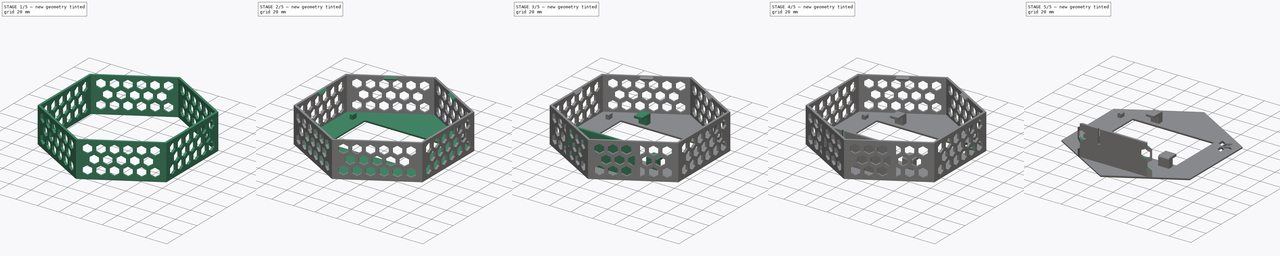
[diagram: build sequence overview — one tinted view per stage of 5, left to right]
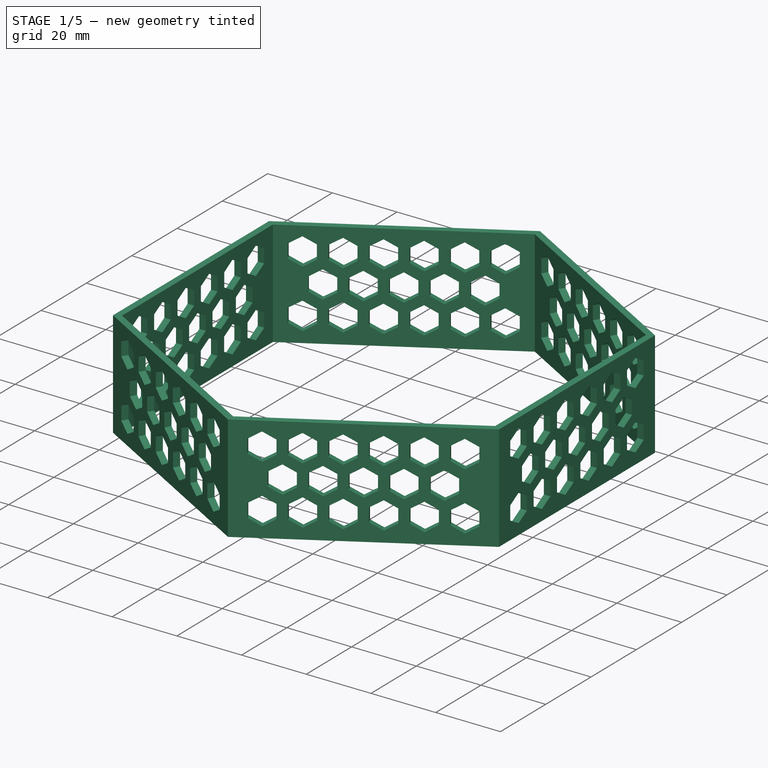
[diagram: stage 1 of 5 — iso view after this stage's code; geometry added in this stage tinted green]
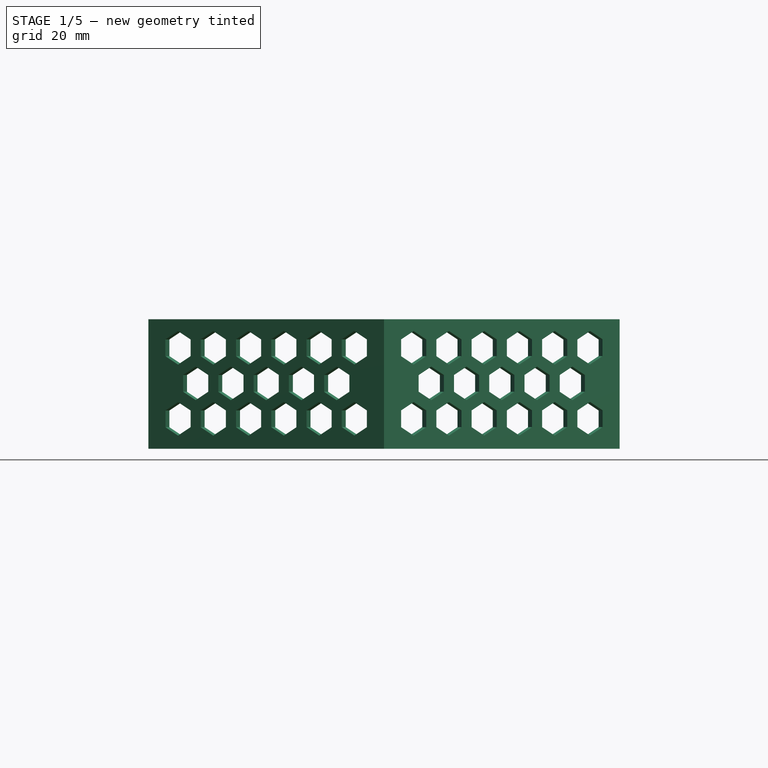
[diagram: stage 1 of 5 — front view after this stage's code; geometry added in this stage tinted green]
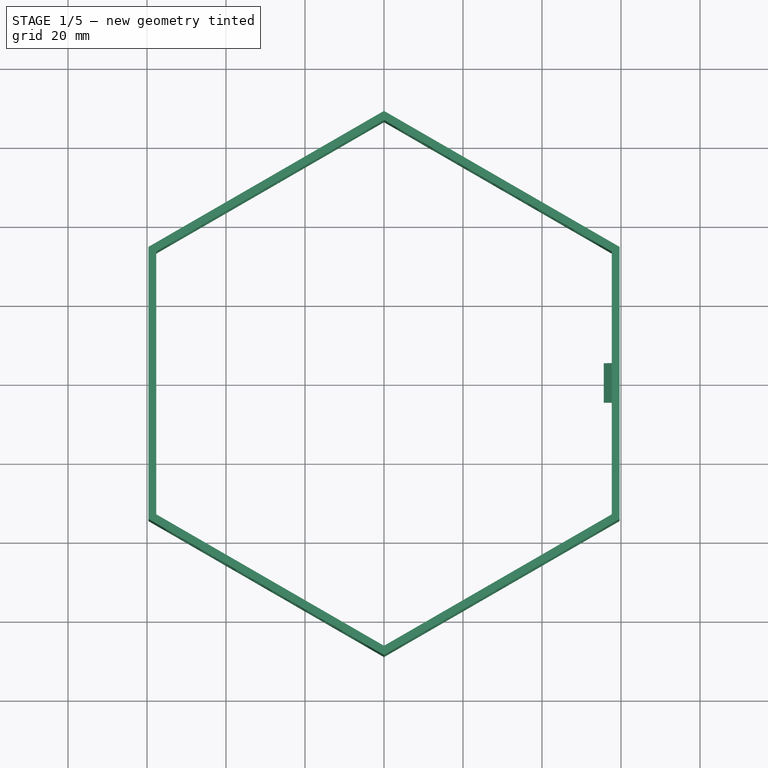
[diagram: stage 1 of 5 — top view after this stage's code; geometry added in this stage tinted green]
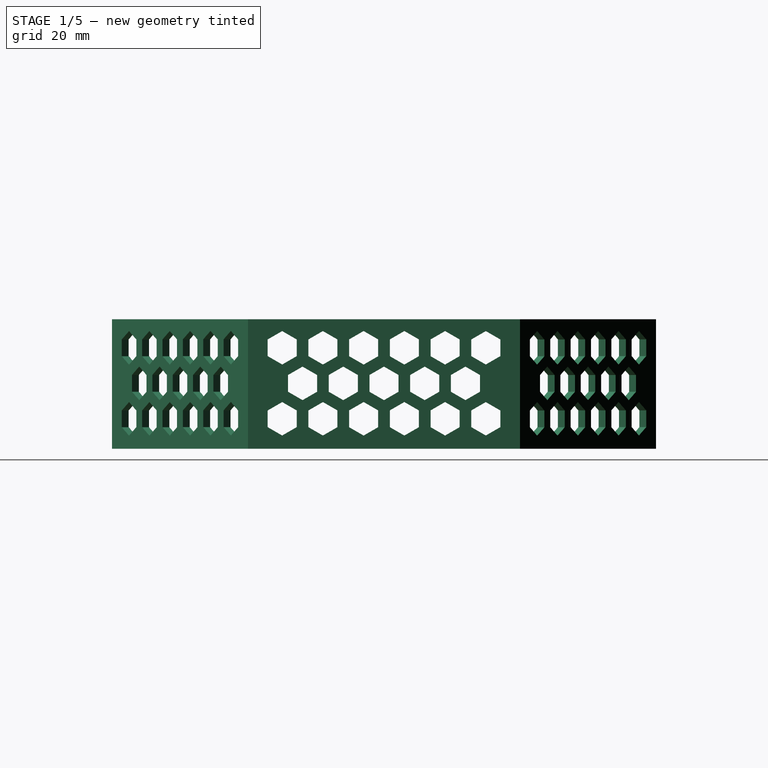
[diagram: stage 1 of 5 — right view after this stage's code; geometry added in this stage tinted green]
FCSTD DOCUMENT  (FreeCAD 0.20R)
Label: Cover_ONE_EU_240V
License: All rights reserved
LicenseURL: http://en.wikipedia.org/wiki/All_rights_reserved
objects: Sketcher::SketchObject×11, PartDesign::Pad×7, PartDesign::Pocket×5, PartDesign::Chamfer×2, PartDesign::PolarPattern×2, PartDesign::Body×2, PartDesign::ShapeBinder×2, Spreadsheet::Sheet×1, PartDesign::Fillet×1, Part::Part2DObjectPython×1
note: 48 computed .brp shape members not serialized (recipe doc carries the construction recipe); baked Part::Feature solids carry a one-line shape summary decoded from their .brp

FEATURE [Sketcher::SketchObject] Sketch003  label="Tab_stops_Sketch"
  ExternalGeometry = -> [Pad]
  FullyConstrained = true
  MapMode = 5
  Support = -> [XY_Plane001]
  sketch-geometry (8):
    g0: LineSegment StartX=-48.3762 StartY=28.5 StartZ=0 EndX=-45.3762 EndY=28.5 EndZ=0
    g1: LineSegment StartX=-45.3762 StartY=28.5 StartZ=0 EndX=-45.3762 EndY=23.5 EndZ=0
    g2: LineSegment StartX=-45.3762 StartY=23.5 StartZ=0 EndX=-48.3762 EndY=23.5 EndZ=0
    g3: LineSegment StartX=-48.3762 StartY=23.5 StartZ=0 EndX=-48.3762 EndY=28.5 EndZ=0
    g4: LineSegment StartX=-48.3762 StartY=-16.5 StartZ=0 EndX=-45.3762 EndY=-16.5 EndZ=0
    g5: LineSegment StartX=-45.3762 StartY=-16.5 StartZ=0 EndX=-45.3762 EndY=-21.5 EndZ=0
    g6: LineSegment StartX=-45.3762 StartY=-21.5 StartZ=0 EndX=-48.3762 EndY=-21.5 EndZ=0
    g7: LineSegment StartX=-48.3762 StartY=-21.5 StartZ=0 EndX=-48.3762 EndY=-16.5 EndZ=0
  constraints (24):
    c: Coincident(g0,g1)
    c: Coincident(g1,g2)
    c: Coincident(g2,g3)
    c: Coincident(g3,g0)
    c: Horizontal(g0)
    c: Horizontal(g2)
    c: Vertical(g1)
    c: Vertical(g3)
    c: Coincident(g4,g5)
    c: Coincident(g5,g6)
    c: Coincident(g6,g7)
    c: Coincident(g7,g4)
    c: Horizontal(g4)
    c: Horizontal(g6)
    c: Vertical(g5)
    c: Vertical(g7)
    c: Equal(g6,g2)
    c: Equal(g1,g5)
    c: PointOnObject(g4,g1)
    c: DistanceX(g-7,g5) = 14.28
    c: DistanceX(g0,g0) = 3
    c: DistanceY(g3,g3) = 5
    c: PointOnObject(g5,g-5)
    c: PointOnObject(g0,g-3)
FEATURE [Sketcher::SketchObject] Sketch005  label="Side_sketch"
  AttachmentOffset = pos=(0,0,58.65) rot=(0,0,1;0rad)
  FullyConstrained = true
  MapMode = 5
  Placement = pos=(57.65,0,0) rot=(0.57735,0.57735,0.57735;2.0944rad)
  expr: .AttachmentOffset.Base.x = 0
  expr: .AttachmentOffset.Base.y = 0
  expr: .AttachmentOffset.Base.z = 58.65mm
  expr: Constraints[9] = Spreadsheet.B1
  sketch-geometry (142):
    g0: LineSegment StartX=-34.445 StartY=32.8 StartZ=0 EndX=34.445 EndY=32.8 EndZ=0
    g1: LineSegment StartX=34.445 StartY=32.8 StartZ=0 EndX=34.445 EndY=0 EndZ=0
    g2: LineSegment StartX=34.445 StartY=0 StartZ=0 EndX=-34.445 EndY=0 EndZ=0
    g3: LineSegment StartX=-34.445 StartY=0 StartZ=0 EndX=-34.445 EndY=32.8 EndZ=0
    g4: LineSegment StartX=-22.1005 StartY=23.425 StartZ=0 EndX=-22.1005 EndY=27.675 EndZ=0
    g5: LineSegment StartX=-22.1005 StartY=27.675 StartZ=0 EndX=-25.7811 EndY=29.8 EndZ=0
    g6: LineSegment StartX=-25.7811 StartY=29.8 StartZ=0 EndX=-29.4618 EndY=27.675 EndZ=0
    g7: LineSegment StartX=-29.4618 StartY=27.675 StartZ=0 EndX=-29.4618 EndY=23.425 EndZ=0
    g8: LineSegment StartX=-29.4618 StartY=23.425 StartZ=0 EndX=-25.7811 EndY=21.3 EndZ=0
    g9: LineSegment StartX=-25.7811 StartY=21.3 StartZ=0 EndX=-22.1005 EndY=23.425 EndZ=0
    g10: Circle CenterX=-25.7811 CenterY=25.55 CenterZ=0 NormalX=0 NormalY=0 NormalZ=1 AngleXU=0 Radius=4.25
    g11: LineSegment StartX=-11.7905 StartY=23.4319 StartZ=0 EndX=-11.7905 EndY=27.6819 EndZ=0
    g12: LineSegment StartX=-11.7905 StartY=27.6819 StartZ=0 EndX=-15.4711 EndY=29.8069 EndZ=0
    g13: LineSegment StartX=-15.4711 StartY=29.8069 StartZ=0 EndX=-19.1518 EndY=27.6819 EndZ=0
    g14: LineSegment StartX=-19.1518 StartY=27.6819 StartZ=0 EndX=-19.1518 EndY=23.4319 EndZ=0
    g15: LineSegment StartX=-19.1518 StartY=23.4319 StartZ=0 EndX=-15.4711 EndY=21.3069 EndZ=0
    g16: LineSegment StartX=-15.4711 StartY=21.3069 StartZ=0 EndX=-11.7905 EndY=23.4319 EndZ=0
    g17: Circle CenterX=-15.4711 CenterY=25.5569 CenterZ=0 NormalX=0 NormalY=0 NormalZ=1 AngleXU=0 Radius=4.25
    g18: LineSegment StartX=-22.1005 StartY=23.425 StartZ=0 EndX=-11.7905 EndY=23.4319 EndZ=0
    g19: LineSegment StartX=-1.48054 StartY=23.4389 StartZ=0 EndX=-1.48054 EndY=27.6889 EndZ=0
    g20: LineSegment StartX=-1.48054 StartY=27.6889 StartZ=0 EndX=-5.16115 EndY=29.8139 EndZ=0
    g21: LineSegment StartX=-5.16115 StartY=29.8139 StartZ=0 EndX=-8.84176 EndY=27.6889 EndZ=0
    g22: LineSegment StartX=-8.84176 StartY=27.6889 StartZ=0 EndX=-8.84176 EndY=23.4389 EndZ=0
    g23: LineSegment StartX=-8.84176 StartY=23.4389 StartZ=0 EndX=-5.16115 EndY=21.3139 EndZ=0
    g24: LineSegment StartX=-5.16115 StartY=21.3139 StartZ=0 EndX=-1.48054 EndY=23.4389 EndZ=0
    g25: Circle CenterX=-5.16115 CenterY=25.5639 CenterZ=0 NormalX=0 NormalY=0 NormalZ=1 AngleXU=0 Radius=4.25
    g26: LineSegment StartX=-11.7905 StartY=23.4319 StartZ=0 EndX=-1.48054 EndY=23.4389 EndZ=0
    g27: LineSegment StartX=8.82946 StartY=23.4458 StartZ=0 EndX=8.82946 EndY=27.6958 EndZ=0
    g28: LineSegment StartX=8.82946 StartY=27.6958 StartZ=0 EndX=5.14885 EndY=29.8208 EndZ=0
    g29: LineSegment StartX=5.14885 StartY=29.8208 StartZ=0 EndX=1.46824 EndY=27.6958 EndZ=0
    g30: LineSegment StartX=1.46824 StartY=27.6958 StartZ=0 EndX=1.46824 EndY=23.4458 EndZ=0
    g31: LineSegment StartX=1.46824 StartY=23.4458 StartZ=0 EndX=5.14885 EndY=21.3208 EndZ=0
    g32: LineSegment StartX=5.14885 StartY=21.3208 StartZ=0 EndX=8.82946 EndY=23.4458 EndZ=0
    g33: Circle CenterX=5.14885 CenterY=25.5708 CenterZ=0 NormalX=0 NormalY=0 NormalZ=1 AngleXU=0 Radius=4.25
    g34: LineSegment StartX=-1.48054 StartY=23.4389 StartZ=0 EndX=8.82946 EndY=23.4458 EndZ=0
    g35: LineSegment StartX=19.1395 StartY=23.4528 StartZ=0 EndX=19.1395 EndY=27.7028 EndZ=0
    g36: LineSegment StartX=19.1395 StartY=27.7028 StartZ=0 EndX=15.4588 EndY=29.8278 EndZ=0
    g37: LineSegment StartX=15.4588 StartY=29.8278 StartZ=0 EndX=11.7782 EndY=27.7028 EndZ=0
    g38: LineSegment StartX=11.7782 StartY=27.7028 StartZ=0 EndX=11.7782 EndY=23.4528 EndZ=0
    g39: LineSegment StartX=11.7782 StartY=23.4528 StartZ=0 EndX=15.4588 EndY=21.3278 EndZ=0
    g40: LineSegment StartX=15.4588 StartY=21.3278 StartZ=0 EndX=19.1395 EndY=23.4528 EndZ=0
    g41: Circle CenterX=15.4588 CenterY=25.5778 CenterZ=0 NormalX=0 NormalY=0 NormalZ=1 AngleXU=0 Radius=4.25
    g42: LineSegment StartX=8.82946 StartY=23.4458 StartZ=0 EndX=19.1395 EndY=23.4528 EndZ=0
    g43: LineSegment StartX=29.4495 StartY=23.4597 StartZ=0 EndX=29.4495 EndY=27.7097 EndZ=0
    g44: LineSegment StartX=29.4495 StartY=27.7097 StartZ=0 EndX=25.7688 EndY=29.8347 EndZ=0
    g45: LineSegment StartX=25.7688 StartY=29.8347 StartZ=0 EndX=22.0882 EndY=27.7097 EndZ=0
    g46: LineSegment StartX=22.0882 StartY=27.7097 StartZ=0 EndX=22.0882 EndY=23.4597 EndZ=0
    g47: LineSegment StartX=22.0882 StartY=23.4597 StartZ=0 EndX=25.7688 EndY=21.3347 EndZ=0
    g48: LineSegment StartX=25.7688 StartY=21.3347 StartZ=0 EndX=29.4495 EndY=23.4597 EndZ=0
    g49: Circle CenterX=25.7688 CenterY=25.5847 CenterZ=0 NormalX=0 NormalY=0 NormalZ=1 AngleXU=0 Radius=4.25
    g50: LineSegment StartX=19.1395 StartY=23.4528 StartZ=0 EndX=29.4495 EndY=23.4597 EndZ=0
    g51: LineSegment StartX=-22.0884 StartY=5.44974 StartZ=0 EndX=-22.0884 EndY=9.69974 EndZ=0
    g52: LineSegment StartX=-22.0884 StartY=9.69974 StartZ=0 EndX=-25.769 EndY=11.8247 EndZ=0
    g53: LineSegment StartX=-25.769 StartY=11.8247 StartZ=0 EndX=-29.4497 EndY=9.69974 EndZ=0
    g54: LineSegment StartX=-29.4497 StartY=9.69974 StartZ=0 EndX=-29.4497 EndY=5.44974 EndZ=0
    g55: LineSegment StartX=-29.4497 StartY=5.44974 StartZ=0 EndX=-25.769 EndY=3.32474 EndZ=0
    g56: LineSegment StartX=-25.769 StartY=3.32474 StartZ=0 EndX=-22.0884 EndY=5.44974 EndZ=0
    g57: Circle CenterX=-25.769 CenterY=7.57474 CenterZ=0 NormalX=0 NormalY=0 NormalZ=1 AngleXU=0 Radius=4.25
    g58: LineSegment StartX=-22.1005 StartY=23.425 StartZ=0 EndX=-22.0884 EndY=5.44974 EndZ=0
    g59: LineSegment StartX=-11.7784 StartY=5.45668 StartZ=0 EndX=-11.7784 EndY=9.70668 EndZ=0
    g60: LineSegment StartX=-11.7784 StartY=9.70668 StartZ=0 EndX=-15.4591 EndY=11.8317 EndZ=0
    g61: LineSegment StartX=-15.4591 StartY=11.8317 StartZ=0 EndX=-19.1397 EndY=9.70668 EndZ=0
    g62: LineSegment StartX=-19.1397 StartY=9.70668 StartZ=0 EndX=-19.1397 EndY=5.45668 EndZ=0
    g63: LineSegment StartX=-19.1397 StartY=5.45668 StartZ=0 EndX=-15.4591 EndY=3.33168 EndZ=0
    g64: LineSegment StartX=-15.4591 StartY=3.33168 StartZ=0 EndX=-11.7784 EndY=5.45668 EndZ=0
    g65: Circle CenterX=-15.4591 CenterY=7.58168 CenterZ=0 NormalX=0 NormalY=0 NormalZ=1 AngleXU=0 Radius=4.25
    g66: LineSegment StartX=-22.0884 StartY=5.44974 StartZ=0 EndX=-11.7784 EndY=5.45668 EndZ=0
    g67: LineSegment StartX=-1.46845 StartY=5.46362 StartZ=0 EndX=-1.46845 EndY=9.71362 EndZ=0
    g68: LineSegment StartX=-1.46845 StartY=9.71362 StartZ=0 EndX=-5.14905 EndY=11.8386 EndZ=0
    g69: LineSegment StartX=-5.14905 StartY=11.8386 StartZ=0 EndX=-8.82966 EndY=9.71362 EndZ=0
    g70: LineSegment StartX=-8.82966 StartY=9.71362 StartZ=0 EndX=-8.82966 EndY=5.46362 EndZ=0
    g71: LineSegment StartX=-8.82966 StartY=5.46362 StartZ=0 EndX=-5.14905 EndY=3.33862 EndZ=0
    g72: LineSegment StartX=-5.14905 StartY=3.33862 StartZ=0 EndX=-1.46845 EndY=5.46362 EndZ=0
    g73: Circle CenterX=-5.14905 CenterY=7.58862 CenterZ=0 NormalX=0 NormalY=0 NormalZ=1 AngleXU=0 Radius=4.25
    g74: LineSegment StartX=-11.7784 StartY=5.45668 StartZ=0 EndX=-1.46845 EndY=5.46362 EndZ=0
    g75: LineSegment StartX=8.84155 StartY=5.47056 StartZ=0 EndX=8.84155 EndY=9.72056 EndZ=0
    g76: LineSegment StartX=8.84155 StartY=9.72056 StartZ=0 EndX=5.16094 EndY=11.8456 EndZ=0
    g77: LineSegment StartX=5.16094 StartY=11.8456 StartZ=0 EndX=1.48034 EndY=9.72056 EndZ=0
    g78: LineSegment StartX=1.48034 StartY=9.72056 StartZ=0 EndX=1.48034 EndY=5.47056 EndZ=0
    g79: LineSegment StartX=1.48034 StartY=5.47056 StartZ=0 EndX=5.16094 EndY=3.34556 EndZ=0
    g80: LineSegment StartX=5.16094 StartY=3.34556 StartZ=0 EndX=8.84155 EndY=5.47056 EndZ=0
    g81: Circle CenterX=5.16094 CenterY=7.59556 CenterZ=0 NormalX=0 NormalY=0 NormalZ=1 AngleXU=0 Radius=4.25
    g82: LineSegment StartX=-1.46845 StartY=5.46362 StartZ=0 EndX=8.84155 EndY=5.47056 EndZ=0
    g83: LineSegment StartX=19.1515 StartY=5.47749 StartZ=0 EndX=19.1515 EndY=9.72749 EndZ=0
    g84: LineSegment StartX=19.1515 StartY=9.72749 StartZ=0 EndX=15.4709 EndY=11.8525 EndZ=0
    g85: LineSegment StartX=15.4709 StartY=11.8525 StartZ=0 EndX=11.7903 EndY=9.72749 EndZ=0
    g86: LineSegment StartX=11.7903 StartY=9.72749 StartZ=0 EndX=11.7903 EndY=5.47749 EndZ=0
    g87: LineSegment StartX=11.7903 StartY=5.47749 StartZ=0 EndX=15.4709 EndY=3.35249 EndZ=0
    g88: LineSegment StartX=15.4709 StartY=3.35249 StartZ=0 EndX=19.1515 EndY=5.47749 EndZ=0
    g89: Circle CenterX=15.4709 CenterY=7.60249 CenterZ=0 NormalX=0 NormalY=0 NormalZ=1 AngleXU=0 Radius=4.25
    g90: LineSegment StartX=8.84155 StartY=5.47056 StartZ=0 EndX=19.1515 EndY=5.47749 EndZ=0
    g91: LineSegment StartX=29.4615 StartY=5.48443 StartZ=0 EndX=29.4615 EndY=9.73443 EndZ=0
    g92: LineSegment StartX=29.4615 StartY=9.73443 StartZ=0 EndX=25.7809 EndY=11.8594 EndZ=0
    g93: LineSegment StartX=25.7809 StartY=11.8594 StartZ=0 EndX=22.1003 EndY=9.73443 EndZ=0
    g94: LineSegment StartX=22.1003 StartY=9.73443 StartZ=0 EndX=22.1003 EndY=5.48443 EndZ=0
    g95: LineSegment StartX=22.1003 StartY=5.48443 StartZ=0 EndX=25.7809 EndY=3.35943 EndZ=0
    g96: LineSegment StartX=25.7809 StartY=3.35943 StartZ=0 EndX=29.4615 EndY=5.48443 EndZ=0
    g97: Circle CenterX=25.7809 CenterY=7.60943 CenterZ=0 NormalX=0 NormalY=0 NormalZ=1 AngleXU=0 Radius=4.25
    g98: LineSegment StartX=19.1515 StartY=5.47749 StartZ=0 EndX=29.4615 EndY=5.48443 EndZ=0
    g99: LineSegment StartX=-16.9394 StartY=14.4408 StartZ=0 EndX=-16.9394 EndY=18.6908 EndZ=0
    g100: LineSegment StartX=-16.9394 StartY=18.6908 StartZ=0 EndX=-20.62 EndY=20.8158 EndZ=0
    g101: LineSegment StartX=-20.62 StartY=20.8158 StartZ=0 EndX=-24.3006 EndY=18.6908 EndZ=0
    g102: LineSegment StartX=-24.3006 StartY=18.6908 StartZ=0 EndX=-24.3006 EndY=14.4408 EndZ=0
    g103: LineSegment StartX=-24.3006 StartY=14.4408 StartZ=0 EndX=-20.62 EndY=12.3158 EndZ=0
    g104: LineSegment StartX=-20.62 StartY=12.3158 StartZ=0 EndX=-16.9394 EndY=14.4408 EndZ=0
    g105: Circle CenterX=-20.62 CenterY=16.5658 CenterZ=0 NormalX=0 NormalY=0 NormalZ=1 AngleXU=0 Radius=4.25
    g106: LineSegment StartX=-25.7811 StartY=21.3 StartZ=0 EndX=-24.3006 EndY=18.6908 EndZ=0
    g107: LineSegment StartX=-16.9394 StartY=18.6908 StartZ=0 EndX=-15.4711 EndY=21.3069 EndZ=0
    g108: LineSegment StartX=-24.3006 StartY=14.4408 StartZ=0 EndX=-25.769 EndY=11.8247 EndZ=0
    g109: LineSegment StartX=-20.62 StartY=12.3158 StartZ=0 EndX=-22.0884 EndY=9.69974 EndZ=0
    g110: LineSegment StartX=-6.62939 StartY=14.4373 StartZ=0 EndX=-6.62939 EndY=18.6873 EndZ=0
    g111: LineSegment StartX=-6.62939 StartY=18.6873 StartZ=0 EndX=-10.31 EndY=20.8123 EndZ=0
    g112: LineSegment StartX=-10.31 StartY=20.8123 StartZ=0 EndX=-13.9906 EndY=18.6873 EndZ=0
    g113: LineSegment StartX=-13.9906 StartY=18.6873 StartZ=0 EndX=-13.9906 EndY=14.4373 EndZ=0
    g114: LineSegment StartX=-13.9906 StartY=14.4373 StartZ=0 EndX=-10.31 EndY=12.3123 EndZ=0
    g115: LineSegment StartX=-10.31 StartY=12.3123 StartZ=0 EndX=-6.62939 EndY=14.4373 EndZ=0
    g116: Circle CenterX=-10.31 CenterY=16.5623 CenterZ=0 NormalX=0 NormalY=0 NormalZ=1 AngleXU=0 Radius=4.25
    g117: LineSegment StartX=-16.9394 StartY=14.4408 StartZ=0 EndX=-6.62939 EndY=14.4373 EndZ=0
    g118: LineSegment StartX=3.68061 StartY=14.4338 StartZ=0 EndX=3.68061 EndY=18.6838 EndZ=0
    g119: LineSegment StartX=3.68061 StartY=18.6838 StartZ=0 EndX=0 EndY=20.8088 EndZ=0
    g120: LineSegment StartX=0 StartY=20.8088 StartZ=0 EndX=-3.68061 EndY=18.6838 EndZ=0
    g121: LineSegment StartX=-3.68061 StartY=18.6838 StartZ=0 EndX=-3.68061 EndY=14.4338 EndZ=0
    g122: LineSegment StartX=-3.68061 StartY=14.4338 StartZ=0 EndX=0 EndY=12.3088 EndZ=0
    g123: LineSegment StartX=1e-16 StartY=12.3088 StartZ=0 EndX=3.68061 EndY=14.4338 EndZ=0
    g124: Circle CenterX=-8e-16 CenterY=16.5588 CenterZ=0 NormalX=0 NormalY=0 NormalZ=1 AngleXU=0 Radius=4.25
    g125: LineSegment StartX=-6.62939 StartY=14.4373 StartZ=0 EndX=3.68061 EndY=14.4338 EndZ=0
    g126: LineSegment StartX=13.9906 StartY=14.4304 StartZ=0 EndX=13.9906 EndY=18.6804 EndZ=0
    g127: LineSegment StartX=13.9906 StartY=18.6804 StartZ=0 EndX=10.31 EndY=20.8054 EndZ=0
    g128: LineSegment StartX=10.31 StartY=20.8054 StartZ=0 EndX=6.62939 EndY=18.6804 EndZ=0
    g129: LineSegment StartX=6.62939 StartY=18.6804 StartZ=0 EndX=6.62939 EndY=14.4304 EndZ=0
    g130: LineSegment StartX=6.62939 StartY=14.4304 StartZ=0 EndX=10.31 EndY=12.3054 EndZ=0
    g131: LineSegment StartX=10.31 StartY=12.3054 StartZ=0 EndX=13.9906 EndY=14.4304 EndZ=0
    g132: Circle CenterX=10.31 CenterY=16.5554 CenterZ=0 NormalX=0 NormalY=0 NormalZ=1 AngleXU=0 Radius=4.25
    g133: LineSegment StartX=3.68061 StartY=14.4338 StartZ=0 EndX=13.9906 EndY=14.4304 EndZ=0
    g134: LineSegment StartX=24.3006 StartY=14.4269 StartZ=0 EndX=24.3006 EndY=18.6769 EndZ=0
    g135: LineSegment StartX=24.3006 StartY=18.6769 StartZ=0 EndX=20.62 EndY=20.8019 EndZ=0
    g136: LineSegment StartX=20.62 StartY=20.8019 StartZ=0 EndX=16.9394 EndY=18.6769 EndZ=0
    g137: LineSegment StartX=16.9394 StartY=18.6769 StartZ=0 EndX=16.9394 EndY=14.4269 EndZ=0
    g138: LineSegment StartX=16.9394 StartY=14.4269 StartZ=0 EndX=20.62 EndY=12.3019 EndZ=0
    g139: LineSegment StartX=20.62 StartY=12.3019 StartZ=0 EndX=24.3006 EndY=14.4269 EndZ=0
    g140: Circle CenterX=20.62 CenterY=16.5519 CenterZ=0 NormalX=0 NormalY=0 NormalZ=1 AngleXU=0 Radius=4.25
    g141: LineSegment StartX=13.9906 StartY=14.4304 StartZ=0 EndX=24.3006 EndY=14.4269 EndZ=0
  constraints (339):
    c: Coincident(g0,g1)
    c: Coincident(g1,g2)
    c: Coincident(g2,g3)
    c: Coincident(g3,g0)
    c: Horizontal(g0)
    c: Vertical(g1)
    c: Vertical(g3)
    c: PointOnObject(g1,g-1)
    c: Symmetric(g2,g1,g-2)
    c: DistanceY(g3,g3) = 32.8
    c: DistanceX(g0,g0) = 68.89
    c: Coincident(g4,g5)
    c: Coincident(g5,g6)
    c: Coincident(g6,g7)
    c: Coincident(g7,g8)
    c: Coincident(g8,g9)
    c: Coincident(g9,g4)
    c: Equal(g4, g5-g9) x5
    c: PointOnObject(g4,g10)
    c: PointOnObject(g5,g10)
    c: PointOnObject(g6,g10)
    c: PointOnObject(g7,g10)
    c: PointOnObject(g8,g10)
    c: PointOnObject(g9,g10)
    c: Vertical(g7)
    c: DistanceY(g7,g7) = 4.25
    c: DistanceY(g5,g0) = 3
    c: Coincident(g11,g12)
    c: Coincident(g12,g13)
    c: Coincident(g13,g14)
    c: Coincident(g14,g15)
    c: Coincident(g15,g16)
    c: Coincident(g16,g11)
    c: Equal(g11, g12-g16) x5
    c: PointOnObject(g11,g17)
    c: PointOnObject(g12,g17)
    c: PointOnObject(g13,g17)
    c: PointOnObject(g14,g17)
    c: PointOnObject(g15,g17)
    c: PointOnObject(g16,g17)
    c: Vertical(g14)
    c: DistanceY(g14,g14) = 4.25
    c: Coincident(g4,g18)
    c: Coincident(g11,g18)
    c: Distance(g18) = 10.31
    c: Angle(g18) = 0.000672936
    c: Coincident(g19,g20)
    c: Coincident(g20,g21)
    c: Coincident(g21,g22)
    c: Coincident(g22,g23)
    c: Coincident(g23,g24)
    c: Coincident(g24,g19)
    c: Equal(g19, g20-g24) x5
    c: PointOnObject(g19,g25)
    c: PointOnObject(g20,g25)
    c: PointOnObject(g21,g25)
    c: PointOnObject(g22,g25)
    c: PointOnObject(g23,g25)
    c: PointOnObject(g24,g25)
    c: Vertical(g22)
    c: DistanceY(g22,g22) = 4.25
    c: Coincident(g11,g26)
    c: Coincident(g19,g26)
    c: Equal(g18,g26)
    c: Parallel(g26,g18)
    c: Coincident(g27,g28)
    c: Coincident(g28,g29)
    c: Coincident(g29,g30)
    c: Coincident(g30,g31)
    c: Coincident(g31,g32)
    c: Coincident(g32,g27)
    c: Equal(g27, g28-g32) x5
    c: PointOnObject(g27,g33)
    c: PointOnObject(g28,g33)
    c: PointOnObject(g29,g33)
    c: PointOnObject(g30,g33)
    c: PointOnObject(g31,g33)
    c: PointOnObject(g32,g33)
    c: Vertical(g30)
    c: DistanceY(g30,g30) = 4.25
    c: Coincident(g19,g34)
    c: Coincident(g27,g34)
    c: Equal(g18,g34)
    c: Parallel(g34,g18)
    c: Coincident(g35,g36)
    c: Coincident(g36,g37)
    c: Coincident(g37,g38)
    c: Coincident(g38,g39)
    c: Coincident(g39,g40)
    c: Coincident(g40,g35)
    c: Equal(g35, g36-g40) x5
    c: PointOnObject(g35,g41)
    c: PointOnObject(g36,g41)
    c: PointOnObject(g37,g41)
    c: PointOnObject(g38,g41)
    c: PointOnObject(g39,g41)
    c: PointOnObject(g40,g41)
    c: Vertical(g38)
    c: DistanceY(g38,g38) = 4.25
    c: Coincident(g27,g42)
    c: Coincident(g35,g42)
    c: Equal(g18,g42)
    c: Parallel(g42,g18)
    c: Coincident(g43,g44)
    c: Coincident(g44,g45)
    c: Coincident(g45,g46)
    c: Coincident(g46,g47)
    c: Coincident(g47,g48)
    c: Coincident(g48,g43)
    c: Equal(g43, g44-g48) x5
    c: PointOnObject(g43,g49)
    c: PointOnObject(g44,g49)
    c: PointOnObject(g45,g49)
    c: PointOnObject(g46,g49)
    c: PointOnObject(g47,g49)
    c: PointOnObject(g48,g49)
    c: Vertical(g46)
    c: DistanceY(g46,g46) = 4.25
    c: Coincident(g35,g50)
    c: Coincident(g43,g50)
    c: Equal(g18,g50)
    c: Parallel(g50,g18)
    c: Coincident(g51,g52)
    c: Coincident(g52,g53)
    c: Coincident(g53,g54)
    c: Coincident(g54,g55)
    c: Coincident(g55,g56)
    c: Coincident(g56,g51)
    c: Equal(g51, g52-g56) x5
    c: PointOnObject(g51,g57)
    c: PointOnObject(g52,g57)
    c: PointOnObject(g53,g57)
    c: PointOnObject(g54,g57)
    c: PointOnObject(g55,g57)
    c: PointOnObject(g56,g57)
    c: Vertical(g54)
    c: DistanceY(g54,g54) = 4.25
    c: Coincident(g4,g58)
    c: Coincident(g51,g58)
    c: Perpendicular(g58,g18)
    c: Coincident(g59,g60)
    c: Coincident(g60,g61)
    c: Coincident(g61,g62)
    c: Coincident(g62,g63)
    c: Coincident(g63,g64)
    c: Coincident(g64,g59)
    c: Equal(g59, g60-g64) x5
    c: PointOnObject(g59,g65)
    c: PointOnObject(g60,g65)
    c: PointOnObject(g61,g65)
    c: PointOnObject(g62,g65)
    c: PointOnObject(g63,g65)
    c: PointOnObject(g64,g65)
    c: Vertical(g62)
    c: DistanceY(g62,g62) = 4.25
    c: Coincident(g51,g66)
    c: Coincident(g59,g66)
    c: Equal(g18,g66)
    c: Parallel(g66,g18)
    c: Coincident(g67,g68)
    c: Coincident(g68,g69)
    c: Coincident(g69,g70)
    c: Coincident(g70,g71)
    c: Coincident(g71,g72)
    c: Coincident(g72,g67)
    c: Equal(g67, g68-g72) x5
    c: PointOnObject(g67,g73)
    c: PointOnObject(g68,g73)
    c: PointOnObject(g69,g73)
    c: PointOnObject(g70,g73)
    c: PointOnObject(g71,g73)
    c: PointOnObject(g72,g73)
    c: Vertical(g70)
    c: DistanceY(g70,g70) = 4.25
    c: Coincident(g59,g74)
    c: Coincident(g67,g74)
    c: Equal(g18,g74)
    c: Parallel(g74,g18)
    c: Coincident(g75,g76)
    c: Coincident(g76,g77)
    c: Coincident(g77,g78)
    c: Coincident(g78,g79)
    c: Coincident(g79,g80)
    c: Coincident(g80,g75)
    c: Equal(g75, g76-g80) x5
    c: PointOnObject(g75,g81)
    c: PointOnObject(g76,g81)
    c: PointOnObject(g77,g81)
    c: PointOnObject(g78,g81)
    c: PointOnObject(g79,g81)
    c: PointOnObject(g80,g81)
    c: Vertical(g78)
    c: DistanceY(g78,g78) = 4.25
    c: Coincident(g67,g82)
    c: Coincident(g75,g82)
    c: Equal(g18,g82)
    c: Parallel(g82,g18)
    c: Coincident(g83,g84)
    c: Coincident(g84,g85)
    c: Coincident(g85,g86)
    c: Coincident(g86,g87)
    c: Coincident(g87,g88)
    c: Coincident(g88,g83)
    c: Equal(g83, g84-g88) x5
    c: PointOnObject(g83,g89)
    c: PointOnObject(g84,g89)
    c: PointOnObject(g85,g89)
    c: PointOnObject(g86,g89)
    c: PointOnObject(g87,g89)
    c: PointOnObject(g88,g89)
    c: Vertical(g86)
    c: DistanceY(g86,g86) = 4.25
    c: Coincident(g75,g90)
    c: Coincident(g83,g90)
    c: Equal(g18,g90)
    c: Parallel(g90,g18)
    c: Coincident(g91,g92)
    c: Coincident(g92,g93)
    c: Coincident(g93,g94)
    c: Coincident(g94,g95)
    c: Coincident(g95,g96)
    c: Coincident(g96,g91)
    c: Equal(g91, g92-g96) x5
    c: PointOnObject(g91,g97)
    c: PointOnObject(g92,g97)
    c: PointOnObject(g93,g97)
    c: PointOnObject(g94,g97)
    c: PointOnObject(g95,g97)
    c: PointOnObject(g96,g97)
    c: Vertical(g94)
    c: DistanceY(g94,g94) = 4.25
    c: Coincident(g83,g98)
    c: Coincident(g91,g98)
    c: Equal(g18,g98)
    c: Parallel(g98,g18)
    c: Coincident(g99,g100)
    c: Coincident(g100,g101)
    c: Coincident(g101,g102)
    c: Coincident(g102,g103)
    c: Coincident(g103,g104)
    c: Coincident(g104,g99)
    c: Equal(g99, g100-g104) x5
    c: PointOnObject(g99,g105)
    c: PointOnObject(g100,g105)
    c: PointOnObject(g101,g105)
    c: PointOnObject(g102,g105)
    c: PointOnObject(g103,g105)
    c: PointOnObject(g104,g105)
    c: Vertical(g102)
    c: Equal(g54,g102) = 4.25
    c: Coincident(g106,g8)
    c: Coincident(g106,g101)
    c: Distance(g106) = 3
    c: Coincident(g107,g99)
    c: Coincident(g107,g15)
    c: Coincident(g108,g102)
    c: PointOnObject(g108,g53)
    c: Coincident(g109,g103)
    c: Coincident(g109,g51)
    c: Equal(g106,g107)
    c: Equal(g107,g109)
    c: Equal(g109,g108)
    c: Coincident(g110,g111)
    c: Coincident(g111,g112)
    c: Coincident(g112,g113)
    c: Coincident(g113,g114)
    c: Coincident(g114,g115)
    c: Coincident(g115,g110)
    c: Equal(g110, g111-g115) x5
    c: PointOnObject(g110,g116)
    c: PointOnObject(g111,g116)
    c: PointOnObject(g112,g116)
    c: PointOnObject(g113,g116)
    c: PointOnObject(g114,g116)
    c: PointOnObject(g115,g116)
    c: Vertical(g113)
    c: Coincident(g99,g117)
    c: Coincident(g110,g117)
    c: Distance(g117) = 10.31
    c: Angle(g117) = -0.000336498
    c: Coincident(g118,g119)
    c: Coincident(g119,g120)
    c: Coincident(g120,g121)
    c: Coincident(g121,g122)
    c: Coincident(g122,g123)
    c: Coincident(g123,g118)
    c: Equal(g118, g119-g123) x5
    c: PointOnObject(g118,g124)
    c: PointOnObject(g119,g124)
    c: PointOnObject(g120,g124)
    c: PointOnObject(g121,g124)
    c: PointOnObject(g122,g124)
    c: PointOnObject(g123,g124)
    c: Vertical(g121)
    c: Coincident(g110,g125)
    c: Coincident(g118,g125)
    c: Equal(g117,g125)
    c: Parallel(g125,g117)
    c: Coincident(g126,g127)
    c: Coincident(g127,g128)
    c: Coincident(g128,g129)
    c: Coincident(g129,g130)
    c: Coincident(g130,g131)
    c: Coincident(g131,g126)
    c: Equal(g126, g127-g131) x5
    c: PointOnObject(g126,g132)
    c: PointOnObject(g127,g132)
    c: PointOnObject(g128,g132)
    c: PointOnObject(g129,g132)
    c: PointOnObject(g130,g132)
    c: PointOnObject(g131,g132)
    c: Vertical(g129)
    c: Coincident(g118,g133)
    c: Coincident(g126,g133)
    c: Equal(g117,g133)
    c: Parallel(g133,g117)
    c: Coincident(g134,g135)
    c: Coincident(g135,g136)
    c: Coincident(g136,g137)
    c: Coincident(g137,g138)
    c: Coincident(g138,g139)
    c: Coincident(g139,g134)
    c: Equal(g134, g135-g139) x5
    c: PointOnObject(g134,g140)
    c: PointOnObject(g135,g140)
    c: PointOnObject(g136,g140)
    c: PointOnObject(g137,g140)
    c: PointOnObject(g138,g140)
    c: PointOnObject(g139,g140)
    c: Vertical(g137)
    c: Coincident(g126,g141)
    c: Coincident(g134,g141)
    c: Equal(g117,g141)
    c: Parallel(g141,g117)
    c: Equal(g113,g102)
    c: Equal(g102,g121)
    c: Equal(g121,g129)
    c: Equal(g129,g137)
    c: PointOnObject(g119,g-2)
FEATURE [PartDesign::Pad] Pad002  label="Side-pad"
  Direction = (1,-1e-16,2e-16)
  Length = 2
  Length2 = 10
  Placement = pos=(57.65,0,0) rot=(0.57735,0.57735,0.57735;2.0944rad)
  Profile = -> Sketch005
  Type = 0
FEATURE [Spreadsheet::Sheet] Spreadsheet
  cells = A1=Case height; B1=32.8; C1=(interior height); D1=Original case was 32.8; A2=LCD thickness; B2=8.75; D2=Original case was 8.6
FEATURE [Sketcher::SketchObject] Sketch010  label="retention_tab_sketch"
  ExternalGeometry = -> [Pad002]
  FullyConstrained = true
  MapMode = 5
  Placement = pos=(0,0,0) rot=(1,0,0;1.5708rad)
  Support = -> [XZ_Plane002]
  sketch-geometry (4):
    g0: LineSegment StartX=57.65 StartY=32.8 StartZ=0 EndX=55.65 EndY=31.3 EndZ=0
    g1: LineSegment StartX=55.65 StartY=31.3 StartZ=0 EndX=57.65 EndY=29.8 EndZ=0
    g2: LineSegment StartX=57.65 StartY=29.8 StartZ=0 EndX=57.65 EndY=32.8 EndZ=0
    g3: LineSegment StartX=55.65 StartY=31.3 StartZ=0 EndX=57.65 EndY=32.8 EndZ=0
  constraints (10):
    c: Coincident(g-3,g0)
    c: Coincident(g0,g1)
    c: PointOnObject(g1,g-3)
    c: Coincident(g1,g2)
    c: Coincident(g2,g0)
    c: Coincident(g3,g0)
    c: DistanceX(g3,g3) = 2
    c: Coincident(g3,g0)
    c: Equal(g1,g0)
    c: DistanceY(g1,g0) = 3
FEATURE [PartDesign::Pad] Pad007  label="retention_tab_pad"
  BaseFeature = -> Pad002
  Direction = (0,-1,-2e-16)
  Length = 10
  Length2 = 10
  Midplane = true
  Placement = pos=(57.65,0,0) rot=(0.57735,0.57735,0.57735;2.0944rad)
  Profile = -> Sketch010
  Type = 0
FEATURE [PartDesign::PolarPattern] PolarPattern  label="replicate_sides"
  Angle = 360
  Axis = -> Z_Axis002
  BaseFeature = -> Pad007
  Occurrences = 6
  Originals = -> [Pad002]
  Placement = pos=(57.65,0,0) rot=(0.57735,0.57735,0.57735;2.0944rad)
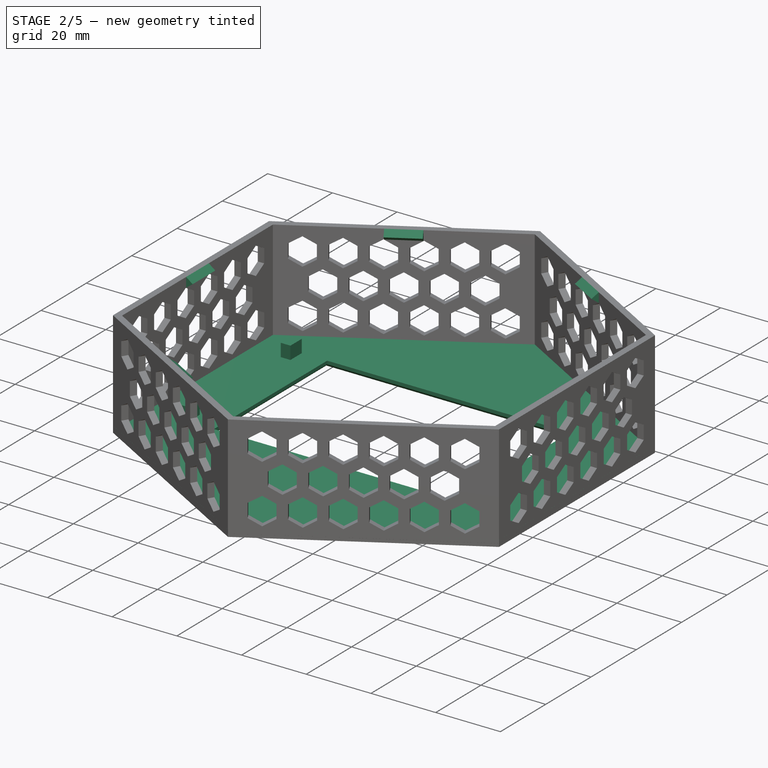
[diagram: stage 2 of 5 — iso view after this stage's code; geometry added in this stage tinted green]
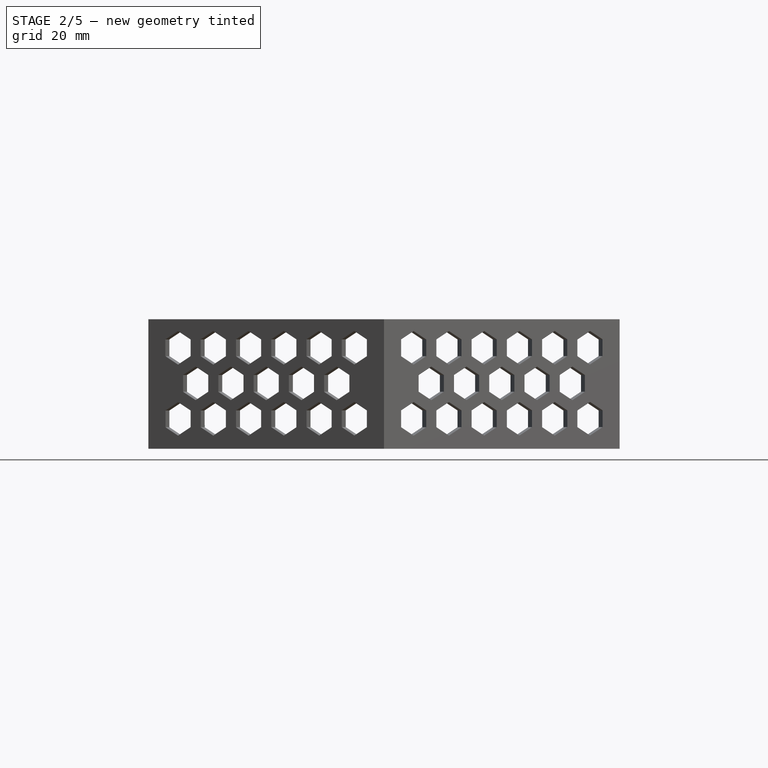
[diagram: stage 2 of 5 — front view after this stage's code; geometry added in this stage tinted green]
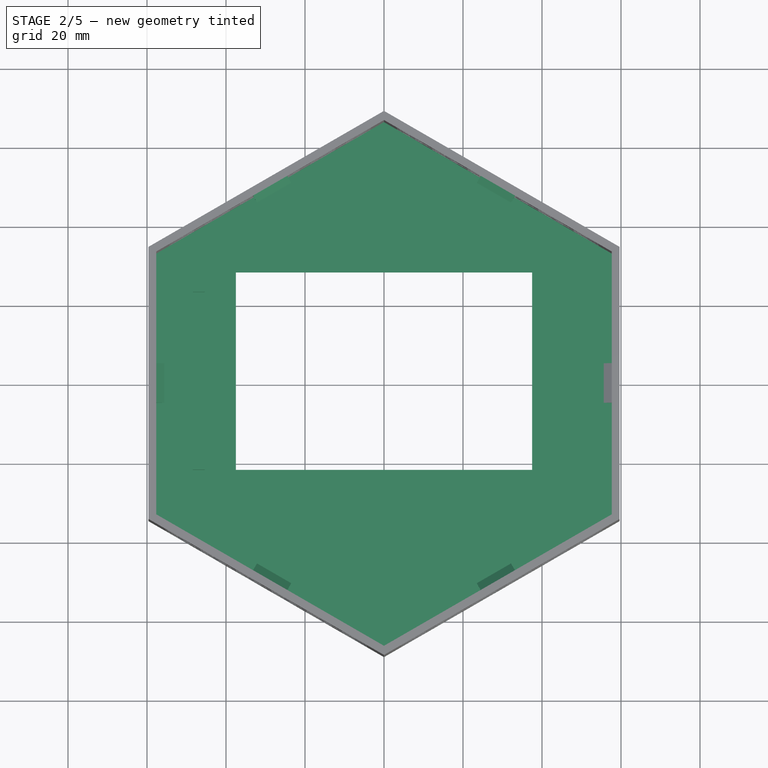
[diagram: stage 2 of 5 — top view after this stage's code; geometry added in this stage tinted green]
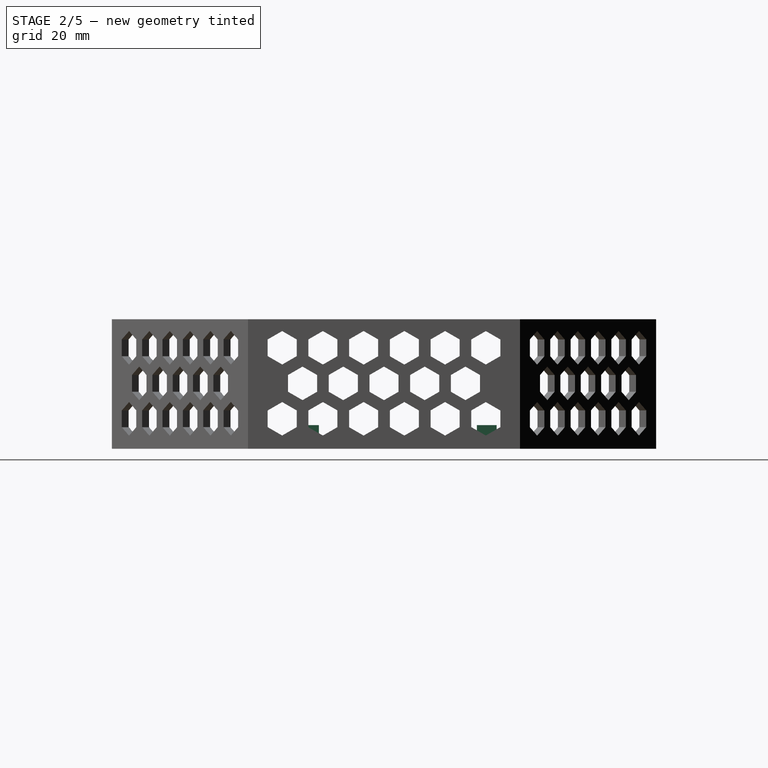
[diagram: stage 2 of 5 — right view after this stage's code; geometry added in this stage tinted green]
FEATURE [Sketcher::SketchObject] Sketch  label="Front_Sketch"
  FullyConstrained = true
  MapMode = 5
  Support = -> [XY_Plane001]
  sketch-geometry (12):
    g0: LineSegment StartX=0 StartY=68.885 StartZ=0 EndX=59.6562 EndY=34.4425 EndZ=0
    g1: LineSegment StartX=59.6562 StartY=34.4425 StartZ=0 EndX=59.6562 EndY=-34.4425 EndZ=0
    g2: LineSegment StartX=59.6562 StartY=-34.4425 StartZ=0 EndX=0 EndY=-68.885 EndZ=0
    g3: LineSegment StartX=0 StartY=-68.885 StartZ=0 EndX=-59.6562 EndY=-34.4425 EndZ=0
    g4: LineSegment StartX=-59.6562 StartY=-34.4425 StartZ=0 EndX=-59.6562 EndY=34.4425 EndZ=0
    g5: LineSegment StartX=-59.6562 StartY=34.4425 StartZ=0 EndX=0 EndY=68.885 EndZ=0
    g6: LineSegment StartX=-59.6562 StartY=-34.4425 StartZ=0 EndX=0 EndY=68.885 EndZ=0
    g7: LineSegment StartX=-59.6562 StartY=34.4425 StartZ=0 EndX=59.6562 EndY=34.4425 EndZ=0
    g8: LineSegment StartX=-37.5 StartY=28.5 StartZ=0 EndX=37.5 EndY=28.5 EndZ=0
    g9: LineSegment StartX=37.5 StartY=28.5 StartZ=0 EndX=37.5 EndY=-21.5 EndZ=0
    g10: LineSegment StartX=37.5 StartY=-21.5 StartZ=0 EndX=-37.5 EndY=-21.5 EndZ=0
    g11: LineSegment StartX=-37.5 StartY=-21.5 StartZ=0 EndX=-37.5 EndY=28.5 EndZ=0
  constraints (32):
    c: PointOnObject(g0,g-2)
    c: Coincident(g0,g1)
    c: Vertical(g1)
    c: Coincident(g1,g2)
    c: PointOnObject(g2,g-2)
    c: Coincident(g2,g3)
    c: Coincident(g3,g4)
    c: Vertical(g4)
    c: Coincident(g4,g5)
    c: Coincident(g5,g0)
    c: Equal(g5,g4)
    c: Equal(g4,g3)
    c: Equal(g3,g2)
    c: Equal(g2,g1)
    c: Symmetric(g0,g3,g-1)
    c: Coincident(g6,g3)
    c: Coincident(g6,g0)
    c: Coincident(g7,g4)
    c: Coincident(g7,g0)
    c: Equal(g7,g6)
    c: Coincident(g8,g9)
    c: Coincident(g9,g10)
    c: Coincident(g10,g11)
    c: Coincident(g11,g8)
    c: Horizontal(g8)
    c: Vertical(g9)
    c: Vertical(g11)
    c: Symmetric(g10,g9,g-2)
    c: DistanceX(g8,g8) = 75
    c: DistanceY(g9,g9) = 50
    c: DistanceY(g-1,g8) = 28.5
    c: DistanceY(g2,g0) = 137.77
FEATURE [PartDesign::Pad] Pad  label="Front_pad"
  Direction = (0,0,1)
  Length = 2
  Length2 = 10
  Profile = -> Sketch
  Type = 0
FEATURE [PartDesign::Chamfer] Chamfer
  Angle = 45
  Base = -> Pad [Edge27,Edge24,Edge21,Edge29,Edge15,Edge17,Edge3,Edge6,Edge9,Edge12]
  BaseFeature = -> Pad
  ChamferType = 0
  FlipDirection = false
  Size = 1
  Size2 = 1
  SupportTransform = false
  UseAllEdges = false
FEATURE [Sketcher::SketchObject] Sketch006  label="LCD_tab_posts_sketch"
  ExternalGeometry = -> [Pad]
  FullyConstrained = true
  MapMode = 5
  Support = -> [XY_Plane001]
  sketch-geometry (12):
    g0: LineSegment StartX=-23.5 StartY=36.75 StartZ=0 EndX=-16 EndY=36.75 EndZ=0
    g1: LineSegment StartX=-16 StartY=36.75 StartZ=0 EndX=-16 EndY=31.75 EndZ=0
    g2: LineSegment StartX=-16 StartY=31.75 StartZ=0 EndX=-23.5 EndY=31.75 EndZ=0
    g3: LineSegment StartX=-23.5 StartY=31.75 StartZ=0 EndX=-23.5 EndY=36.75 EndZ=0
    g4: LineSegment StartX=-36.5 StartY=-24.75 StartZ=0 EndX=-29 EndY=-24.75 EndZ=0
    g5: LineSegment StartX=-29 StartY=-24.75 StartZ=0 EndX=-29 EndY=-29.75 EndZ=0
    g6: LineSegment StartX=-29 StartY=-29.75 StartZ=0 EndX=-36.5 EndY=-29.75 EndZ=0
    g7: LineSegment StartX=-36.5 StartY=-29.75 StartZ=0 EndX=-36.5 EndY=-24.75 EndZ=0
    g8: LineSegment StartX=26.5 StartY=-24.75 StartZ=0 EndX=36.5 EndY=-24.75 EndZ=0
    g9: LineSegment StartX=36.5 StartY=-24.75 StartZ=0 EndX=36.5 EndY=-29.75 EndZ=0
    g10: LineSegment StartX=36.5 StartY=-29.75 StartZ=0 EndX=26.5 EndY=-29.75 EndZ=0
    g11: LineSegment StartX=26.5 StartY=-29.75 StartZ=0 EndX=26.5 EndY=-24.75 EndZ=0
  constraints (36):
    c: Coincident(g0,g1)
    c: Coincident(g1,g2)
    c: Coincident(g2,g3)
    c: Coincident(g3,g0)
    c: Horizontal(g0)
    c: Horizontal(g2)
    c: Vertical(g1)
    c: Vertical(g3)
    c: Coincident(g4,g5)
    c: Coincident(g5,g6)
    c: Coincident(g6,g7)
    c: Coincident(g7,g4)
    c: Horizontal(g4)
    c: Horizontal(g6)
    c: Vertical(g5)
    c: Vertical(g7)
    c: Coincident(g8,g9)
    c: Coincident(g9,g10)
    c: Coincident(g10,g11)
    c: Coincident(g11,g8)
    c: Horizontal(g8)
    c: Horizontal(g10)
    c: Vertical(g9)
    c: Vertical(g11)
    c: Equal(g1,g5)
    c: Equal(g0,g6)
    c: Equal(g11,g5)
    c: DistanceX(g8,g-5) = 1
    c: DistanceX(g-6,g4) = 1
    c: DistanceX(g-6,g2) = 14
    c: DistanceY(g7,g7) = 5
    c: DistanceX(g6,g6) = 7.5
    c: DistanceY(g4,g2) = 56.5
    c: DistanceY(g-6,g1) = 3.25
    c: DistanceX(g10,g10) = 10
    c: PointOnObject(g8,g4)
FEATURE [PartDesign::Pad] Pad003  label="Tab_stops_pad"
  BaseFeature = -> Chamfer
  Direction = (0,0,1)
  Length = 6
  Length2 = 10
  Profile = -> Sketch003
  Type = 0
FEATURE [PartDesign::PolarPattern] PolarPattern001  label="replicate_retention_tabs"
  Angle = 360
  Axis = -> Z_Axis002
  BaseFeature = -> PolarPattern
  Occurrences = 6
  Originals = -> [Pad007]
  Placement = pos=(57.65,0,0) rot=(0.57735,0.57735,0.57735;2.0944rad)
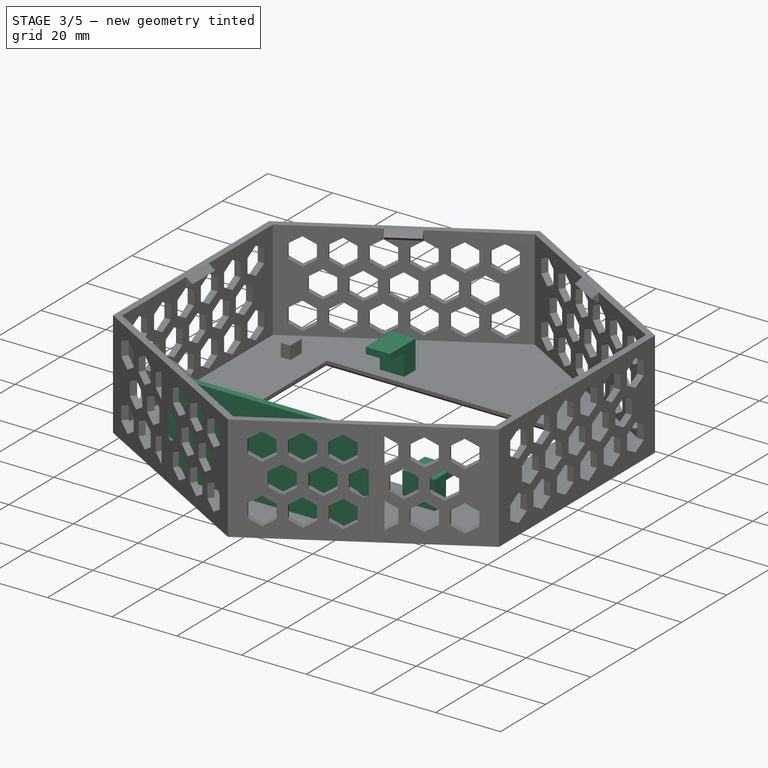
[diagram: stage 3 of 5 — iso view after this stage's code; geometry added in this stage tinted green]
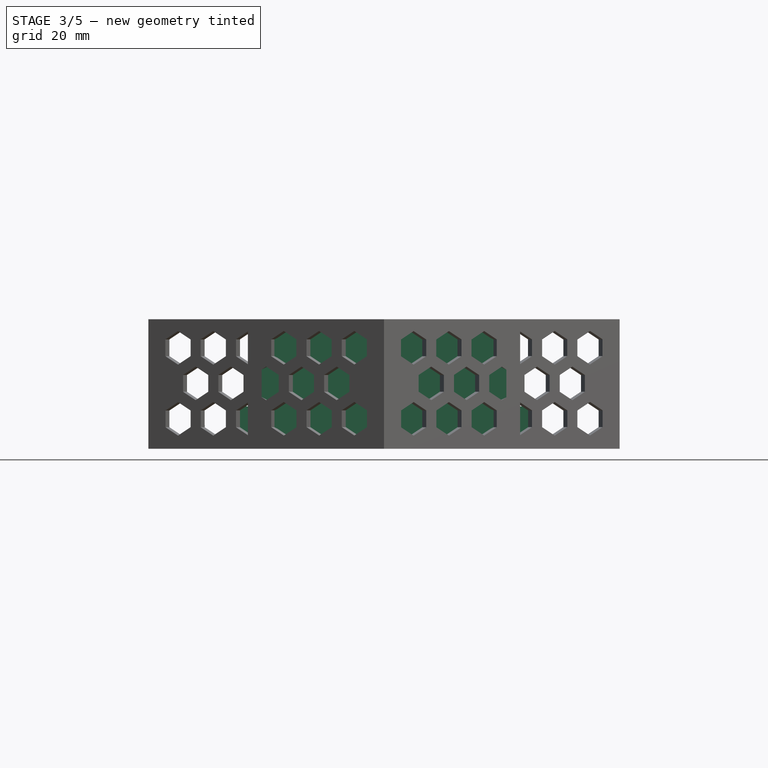
[diagram: stage 3 of 5 — front view after this stage's code; geometry added in this stage tinted green]
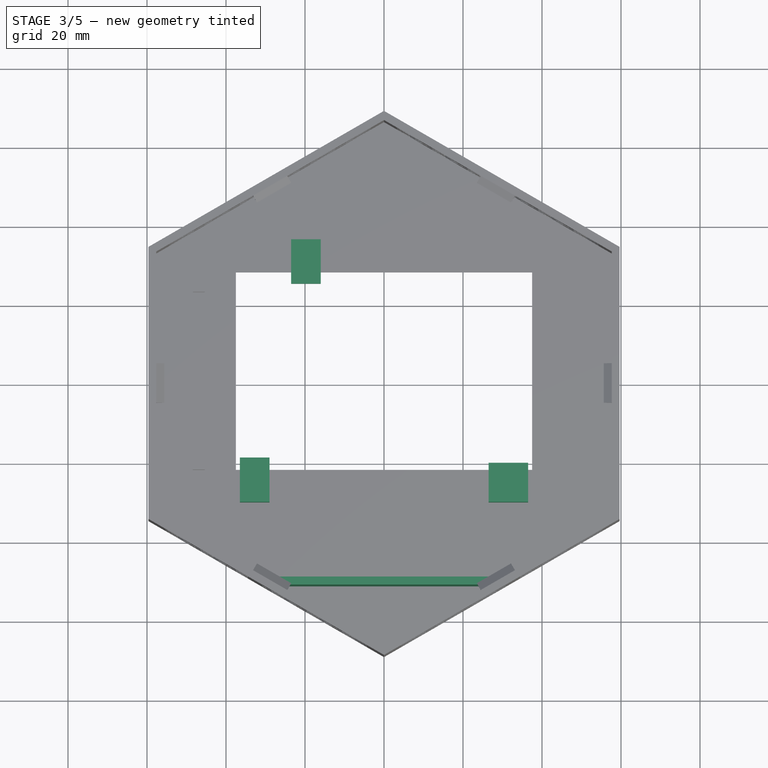
[diagram: stage 3 of 5 — top view after this stage's code; geometry added in this stage tinted green]
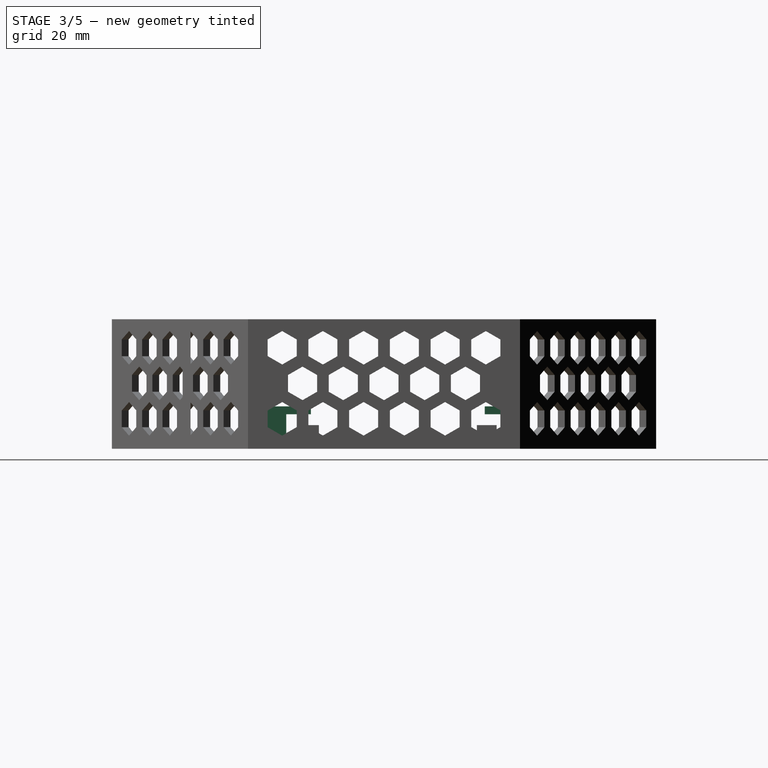
[diagram: stage 3 of 5 — right view after this stage's code; geometry added in this stage tinted green]
FEATURE [PartDesign::Pad] Pad004  label="LCD_tab_posts_pad"
  BaseFeature = -> Pad003
  Direction = (0,0,1)
  Length = 8.75
  Length2 = 10
  Profile = -> Sketch006
  Type = 0
  expr: Length = Spreadsheet.B2
FEATURE [Sketcher::SketchObject] Sketch007  label="LCD_hooks_sketch"
  ExternalGeometry = -> [Pad004]
  FullyConstrained = true
  MapMode = 5
  Placement = pos=(0,0,8.75) rot=(0,0,1;0rad)
  Support = -> [Pad004]
  sketch-geometry (12):
    g0: LineSegment StartX=-23.5 StartY=36.75 StartZ=0 EndX=-16 EndY=36.75 EndZ=0
    g1: LineSegment StartX=-16 StartY=36.75 StartZ=0 EndX=-16 EndY=25.5 EndZ=0
    g2: LineSegment StartX=-16 StartY=25.5 StartZ=0 EndX=-23.5 EndY=25.5 EndZ=0
    g3: LineSegment StartX=-23.5 StartY=25.5 StartZ=0 EndX=-23.5 EndY=36.75 EndZ=0
    g4: LineSegment StartX=-36.5 StartY=-29.75 StartZ=0 EndX=-29 EndY=-29.75 EndZ=0
    g5: LineSegment StartX=-29 StartY=-29.75 StartZ=0 EndX=-29 EndY=-18.5 EndZ=0
    g6: LineSegment StartX=-29 StartY=-18.5 StartZ=0 EndX=-36.5 EndY=-18.5 EndZ=0
    g7: LineSegment StartX=-36.5 StartY=-18.5 StartZ=0 EndX=-36.5 EndY=-29.75 EndZ=0
    g8: LineSegment StartX=36.5 StartY=-29.75 StartZ=0 EndX=26.5 EndY=-29.75 EndZ=0
    g9: LineSegment StartX=26.5 StartY=-29.75 StartZ=0 EndX=26.5 EndY=-19.85 EndZ=0
    g10: LineSegment StartX=26.5 StartY=-19.85 StartZ=0 EndX=36.5 EndY=-19.85 EndZ=0
    g11: LineSegment StartX=36.5 StartY=-19.85 StartZ=0 EndX=36.5 EndY=-29.75 EndZ=0
  constraints (30):
    c: Coincident(g0,g1)
    c: Coincident(g1,g2)
    c: Coincident(g2,g3)
    c: Coincident(g3,g0)
    c: Horizontal(g2)
    c: Vertical(g1)
    c: Vertical(g3)
    c: Coincident(g0,g-5)
    c: Coincident(g4,g5)
    c: Coincident(g5,g6)
    c: Coincident(g6,g7)
    c: Coincident(g7,g4)
    c: Horizontal(g6)
    c: Vertical(g5)
    c: Vertical(g7)
    c: Coincident(g4,g-3)
    c: Coincident(g8,g9)
    c: Coincident(g9,g10)
    c: Coincident(g10,g11)
    c: Coincident(g11,g8)
    c: Horizontal(g10)
    c: Vertical(g9)
    c: Vertical(g11)
    c: Coincident(g8,g-4)
    c: Coincident(g0,g-5)
    c: Coincident(g4,g-3)
    c: Coincident(g8,g-4)
    c: Equal(g3,g7)
    c: DistanceY(g1,g1) = 11.25
    c: DistanceY(g9,g9) = 9.9
FEATURE [PartDesign::Pad] Pad005  label="LCD_hooks_pad"
  BaseFeature = -> Pad004
  Direction = (0,0,1)
  Length = 2
  Length2 = 10
  Profile = -> Sketch007
  Type = 0
FEATURE [Sketcher::SketchObject] Sketch008  label="Partition_sketch"
  ExternalGeometry = -> [Pad005]
  FullyConstrained = true
  MapMode = 5
  Placement = pos=(0,0,2) rot=(0,0,1;0rad)
  Support = -> [Pad005]
  sketch-geometry (4):
    g0: LineSegment StartX=-30.9864 StartY=-50.995 StartZ=0 EndX=30.9864 EndY=-50.995 EndZ=0
    g1: LineSegment StartX=30.9864 StartY=-50.995 StartZ=0 EndX=34.4505 EndY=-48.995 EndZ=0
    g2: LineSegment StartX=34.4505 StartY=-48.995 StartZ=0 EndX=-34.4505 EndY=-48.995 EndZ=0
    g3: LineSegment StartX=-34.4505 StartY=-48.995 StartZ=0 EndX=-30.9864 EndY=-50.995 EndZ=0
  constraints (10):
    c: Coincident(g0,g1)
    c: Coincident(g1,g2)
    c: Coincident(g2,g3)
    c: Coincident(g3,g0)
    c: DistanceY(g-3,g0) = 17.89
    c: Symmetric(g0,g0,g-2)
    c: DistanceY(g3,g3) = 2
    c: PointOnObject(g0,g-3)
    c: PointOnObject(g2,g-3)
    c: Symmetric(g2,g1,g-2)
FEATURE [PartDesign::Pad] Pad006  label="partition_pad"
  BaseFeature = -> Pad005
  Direction = (0,0,1)
  Length = 28
  Length2 = 10
  Profile = -> Sketch008
  Type = 0
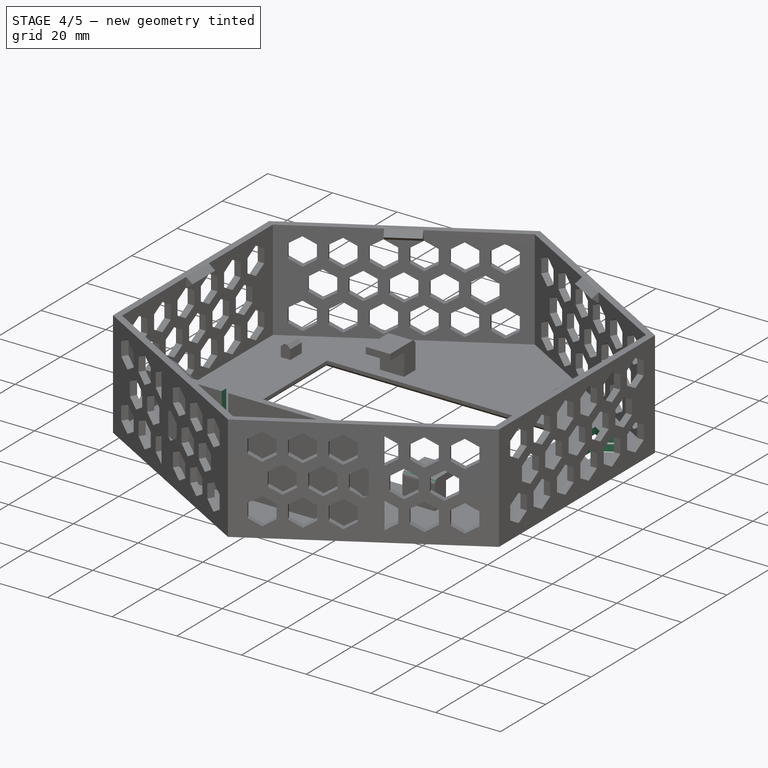
[diagram: stage 4 of 5 — iso view after this stage's code; geometry added in this stage tinted green]
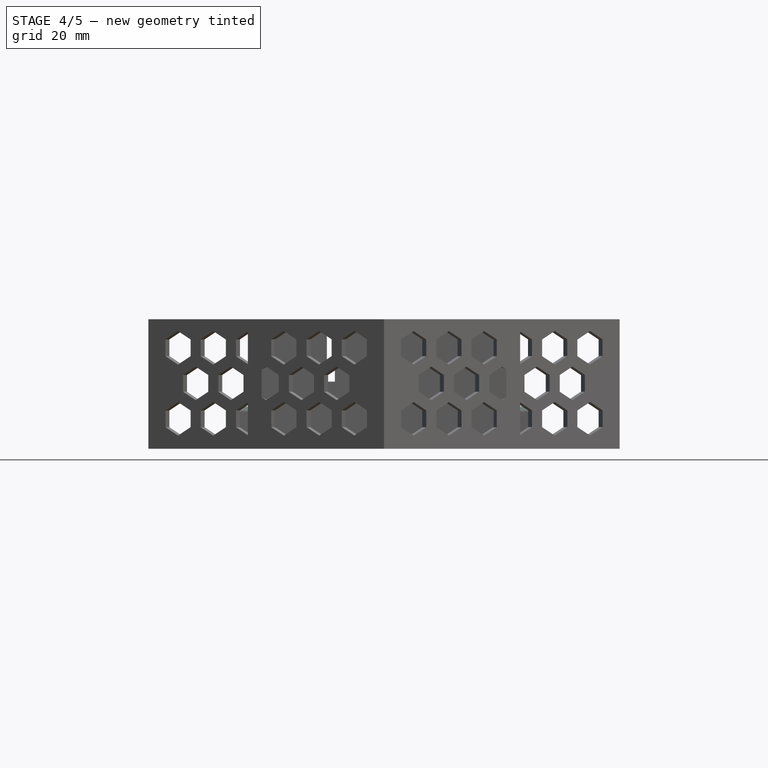
[diagram: stage 4 of 5 — front view after this stage's code; geometry added in this stage tinted green]
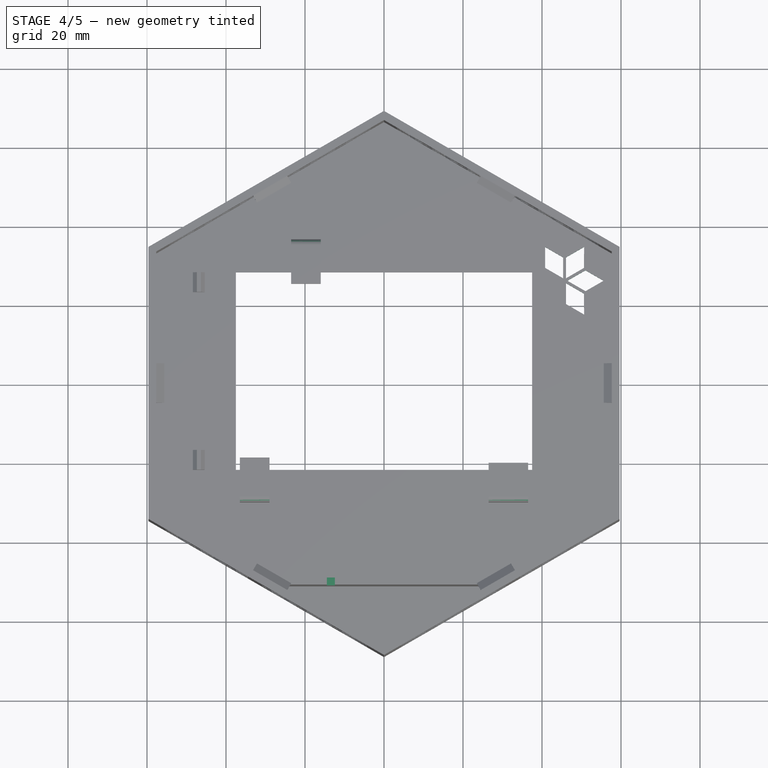
[diagram: stage 4 of 5 — top view after this stage's code; geometry added in this stage tinted green]
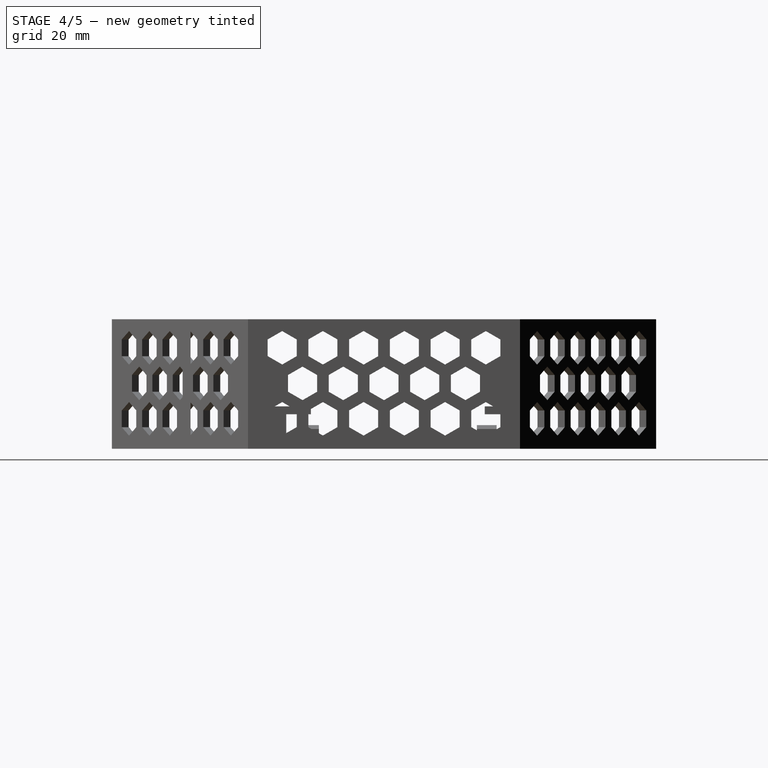
[diagram: stage 4 of 5 — right view after this stage's code; geometry added in this stage tinted green]
FEATURE [Sketcher::SketchObject] Sketch009  label="cable_slit_sketch"
  ExternalGeometry = -> [Pad006]
  FullyConstrained = true
  MapMode = 5
  Placement = pos=(0,-48.995,0) rot=(0,0.707107,0.707107;3.14159rad)
  Support = -> [Pad006]
  sketch-geometry (4):
    g0: LineSegment StartX=12.4505 StartY=30 StartZ=0 EndX=14.4505 EndY=30 EndZ=0
    g1: LineSegment StartX=14.4505 StartY=30 StartZ=0 EndX=14.4505 EndY=17 EndZ=0
    g2: LineSegment StartX=14.4505 StartY=17 StartZ=0 EndX=12.4505 EndY=17 EndZ=0
    g3: LineSegment StartX=12.4505 StartY=17 StartZ=0 EndX=12.4505 EndY=30 EndZ=0
  constraints (12):
    c: Coincident(g0,g1)
    c: Coincident(g1,g2)
    c: Coincident(g2,g3)
    c: Coincident(g3,g0)
    c: Horizontal(g0)
    c: Horizontal(g2)
    c: Vertical(g1)
    c: Vertical(g3)
    c: DistanceX(g2,g2) = 2
    c: DistanceY(g3,g3) = 13
    c: PointOnObject(g0,g-3)
    c: DistanceX(g0,g-3) = 22
FEATURE [PartDesign::Pocket] Pocket  label="cable_slit_pocket"
  BaseFeature = -> Pad006
  Direction = (1,1,1)
  Length = 2
  Length2 = 5
  Profile = -> Sketch009
  Type = 0
FEATURE [PartDesign::Body] Body002  label="Side"
  Group = -> [Sketch005,Pad002,Sketch010,Pad007,PolarPattern,PolarPattern001]
  Origin = -> Origin002
  Placement = pos=(0,0,2) rot=(0,0,1;0rad)
  Tip = -> PolarPattern001
FEATURE [Sketcher::SketchObject] Sketch011  label="logo_Sketch"
  FullyConstrained = false
  MapMode = 5
  Placement = pos=(0,0,0) rot=(1,0,0;3.14159rad)
  sketch-geometry (28):
    g0: LineSegment StartX=50.6527 StartY=-17.8475 StartZ=0 EndX=50.648 EndY=-23.1275 EndZ=0
    g1: LineSegment StartX=50.648 StartY=-23.1275 StartZ=0 EndX=46.0777 EndY=-25.7716 EndZ=0
    g2: LineSegment StartX=46.0777 StartY=-25.7716 StartZ=0 EndX=46.0825 EndY=-20.4916 EndZ=0
    g3: LineSegment StartX=46.0825 StartY=-20.4916 StartZ=0 EndX=50.6527 EndY=-17.8475 EndZ=0
    g4: LineSegment StartX=50.6527 StartY=-17.8475 StartZ=0 EndX=46.0777 EndY=-25.7716 EndZ=0
    g5: GeomPoint X=45.7177 Y=-26.3951 Z=0
    g6: LineSegment StartX=55.5877 StartY=-26.3951 StartZ=0 EndX=51.0127 EndY=-29.031 EndZ=0
    g7: LineSegment StartX=51.0127 StartY=-29.031 StartZ=0 EndX=46.4377 EndY=-26.3951 EndZ=0
    g8: LineSegment StartX=46.4377 StartY=-26.3951 StartZ=0 EndX=51.0127 EndY=-23.7593 EndZ=0
    g9: LineSegment StartX=51.0127 StartY=-23.7593 StartZ=0 EndX=55.5877 EndY=-26.3951 EndZ=0
    g10: LineSegment StartX=55.5877 StartY=-26.3951 StartZ=0 EndX=46.4377 EndY=-26.3951 EndZ=0
    g11: LineSegment StartX=46.0777 StartY=-25.7716 StartZ=0 EndX=45.7177 EndY=-26.3951 EndZ=0
    g12: LineSegment StartX=45.7177 StartY=-26.3951 StartZ=0 EndX=46.4377 EndY=-26.3951 EndZ=0
    g13: LineSegment StartX=50.6527 StartY=-34.9428 StartZ=0 EndX=46.0825 EndY=-32.2987 EndZ=0
    g14: LineSegment StartX=46.0825 StartY=-32.2987 StartZ=0 EndX=46.0777 EndY=-27.0187 EndZ=0
    g15: LineSegment StartX=46.0777 StartY=-27.0187 StartZ=0 EndX=50.648 EndY=-29.6628 EndZ=0
    g16: LineSegment StartX=50.648 StartY=-29.6628 StartZ=0 EndX=50.6527 EndY=-34.9428 EndZ=0
    g17: LineSegment StartX=50.6527 StartY=-34.9428 StartZ=0 EndX=46.0777 EndY=-27.0187 EndZ=0
    g18: LineSegment StartX=45.7177 StartY=-26.3951 StartZ=0 EndX=46.0777 EndY=-27.0187 EndZ=0
    g19: LineSegment StartX=40.7827 StartY=-34.9428 StartZ=0 EndX=40.7875 EndY=-29.6628 EndZ=0
    g20: LineSegment StartX=40.7875 StartY=-29.6628 StartZ=0 EndX=45.3577 EndY=-27.0187 EndZ=0
    g21: LineSegment StartX=45.3577 StartY=-27.0187 StartZ=0 EndX=45.353 EndY=-32.2987 EndZ=0
    g22: LineSegment StartX=45.353 StartY=-32.2987 StartZ=0 EndX=40.7827 EndY=-34.9428 EndZ=0
    g23: LineSegment StartX=40.7827 StartY=-34.9428 StartZ=0 EndX=45.3577 EndY=-27.0187 EndZ=0
    g24: LineSegment StartX=45.7177 StartY=-26.3951 StartZ=0 EndX=45.3577 EndY=-27.0187 EndZ=0
    g25: LineSegment StartX=50.648 StartY=-23.1275 StartZ=0 EndX=51.0127 EndY=-23.7593 EndZ=0
    g26: LineSegment StartX=51.0127 StartY=-29.031 StartZ=0 EndX=50.648 EndY=-29.6628 EndZ=0
    g27: LineSegment StartX=58.6562 StartY=-33.8651 StartZ=0 EndX=45.7177 EndY=-26.3951 EndZ=0
  constraints (69):
    c: Coincident(g0,g1)
    c: Coincident(g1,g2)
    c: Coincident(g2,g3)
    c: Coincident(g3,g0)
    c: Parallel(g0,g2)
    c: Parallel(g3,g1)
    c: Equal(g3,g0)
    c: Distance(g3) = 5.28
    c: Coincident(g4,g0)
    c: Coincident(g4,g1)
    c: Distance(g4) = 9.15
    c: PointOnObject(g5,g4)
    c: Distance(g5,g1) = 0.72
    c: Coincident(g6,g7)
    c: Coincident(g7,g8)
    c: Coincident(g8,g9)
    c: Coincident(g9,g6)
    c: Parallel(g6,g8)
    c: Parallel(g9,g7)
    c: Equal(g9,g6)
    c: Equal(g3,g9) = 5.28
    c: Coincident(g10,g6)
    c: Coincident(g10,g7)
    c: Equal(g4,g10) = 9.87
    c: Coincident(g11,g1)
    c: Coincident(g11,g5)
    c: Coincident(g12,g5)
    c: Coincident(g12,g7)
    c: Equal(g12,g11)
    c: PointOnObject(g6,g12)
    c: Coincident(g13,g14)
    c: Coincident(g14,g15)
    c: Coincident(g15,g16)
    c: Coincident(g16,g13)
    c: Parallel(g13,g15)
    c: Parallel(g16,g14)
    c: Equal(g16,g13)
    c: Coincident(g17,g13)
    c: Coincident(g17,g14)
    c: Equal(g17,g10)
    c: Equal(g16,g6)
    c: Coincident(g18,g5)
    c: Coincident(g18,g14)
    c: PointOnObject(g13,g18)
    c: Coincident(g19,g20)
    c: Coincident(g20,g21)
    c: Coincident(g21,g22)
    c: Coincident(g22,g19)
    c: Parallel(g19,g21)
    c: Parallel(g22,g20)
    c: Equal(g22,g19)
    c: Coincident(g23,g19)
    c: Coincident(g23,g20)
    c: Equal(g23,g17)
    c: Coincident(g24,g5)
    c: Coincident(g24,g20)
    c: Equal(g18,g24)
    c: PointOnObject(g19,g24)
    c: Equal(g22,g13)
    c: PointOnObject(g19,g4)
    c: Coincident(g25,g0)
    c: Coincident(g25,g8)
    c: Coincident(g26,g6)
    c: Coincident(g26,g15)
    c: Equal(g26,g25)
    c: Coincident(g27,g5)
    c: Perpendicular(g27,g23)
    c: Symmetric(g15,g6,g27)
    c: Distance(g27) = 14.94
FEATURE [PartDesign::Pocket] Pocket001  label="logo_Pocket"
  BaseFeature = -> Pocket
  Direction = (1,1,1)
  Length = 2
  Length2 = 5
  Profile = -> Sketch011
  Type = 0
FEATURE [PartDesign::Chamfer] Chamfer001  label="Chamfer_LCD_stops"
  Angle = 45
  Base = -> Pocket001 [Edge157,Edge158,Edge133,Edge134]
  BaseFeature = -> Pocket001
  ChamferType = 0
  FlipDirection = false
  Size = 1
  Size2 = 1
  SupportTransform = false
  UseAllEdges = false
FEATURE [PartDesign::Fillet] Fillet  label="Fillet_LCD_hooks"
  Base = -> Chamfer001 [Edge219,Edge206,Edge196]
  BaseFeature = -> Chamfer001
  Radius = 1.5
  SupportTransform = false
  UseAllEdges = false
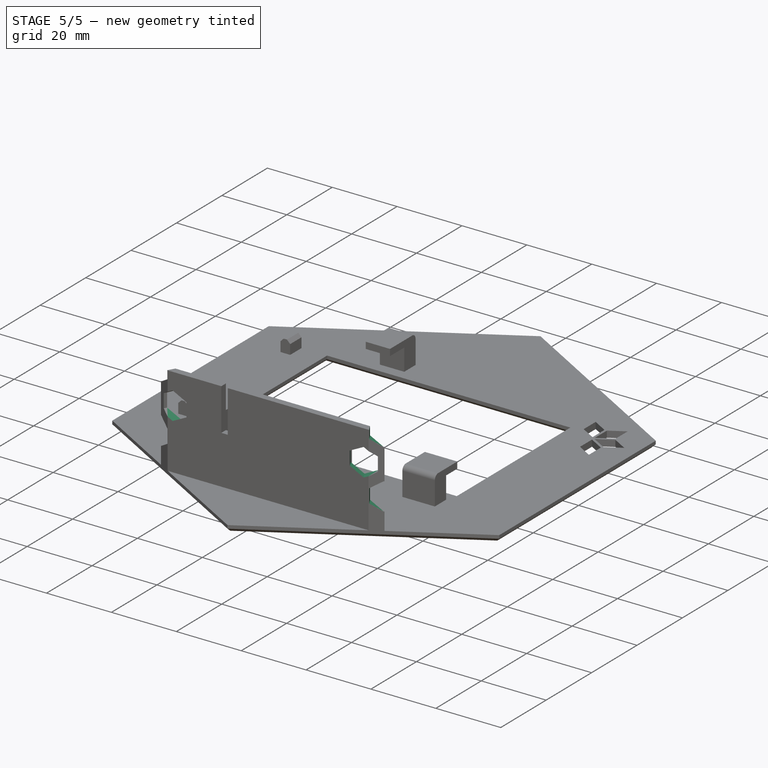
[diagram: stage 5 of 5 — iso view after this stage's code; geometry added in this stage tinted green]
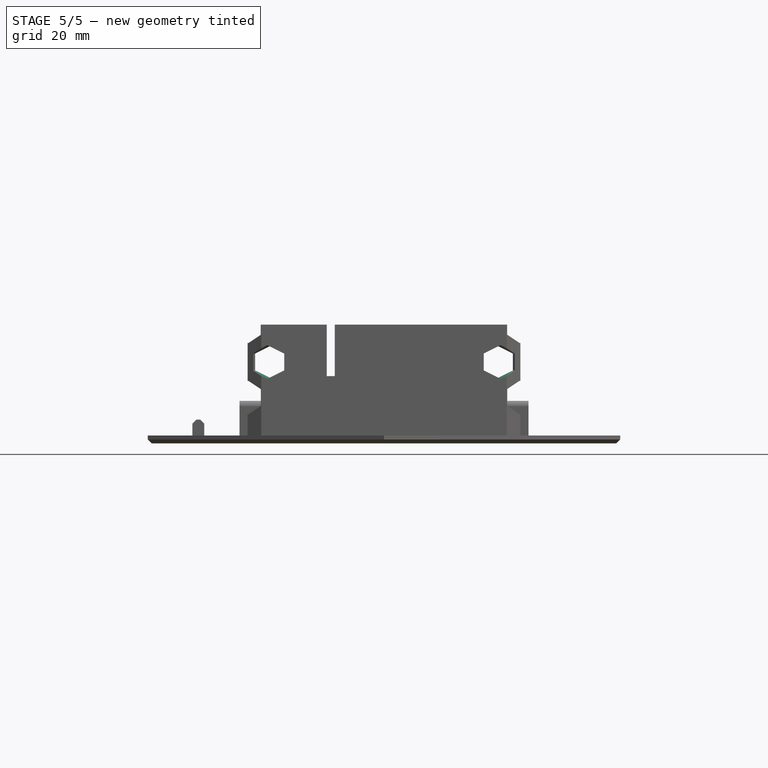
[diagram: stage 5 of 5 — front view after this stage's code; geometry added in this stage tinted green]
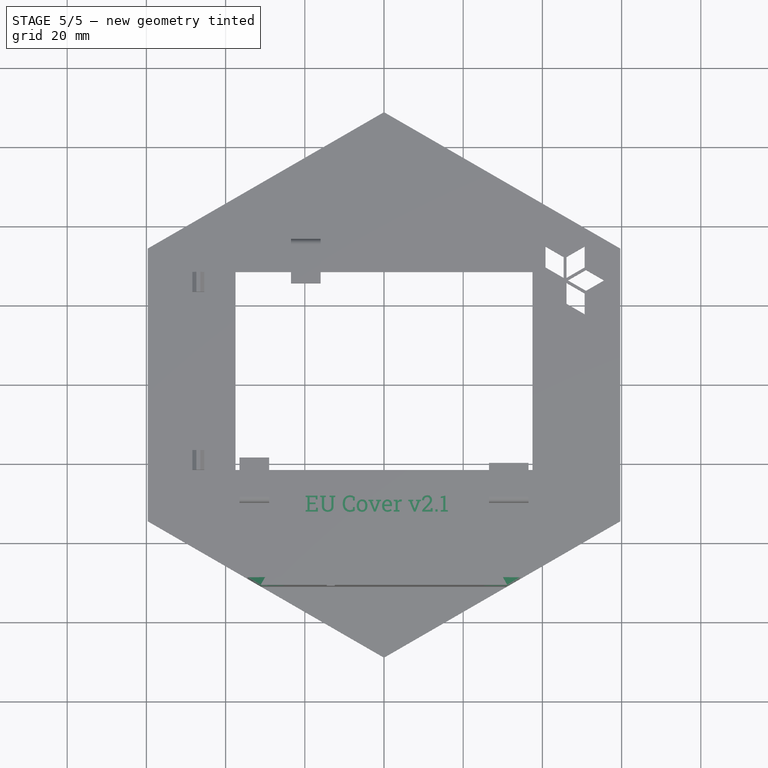
[diagram: stage 5 of 5 — top view after this stage's code; geometry added in this stage tinted green]
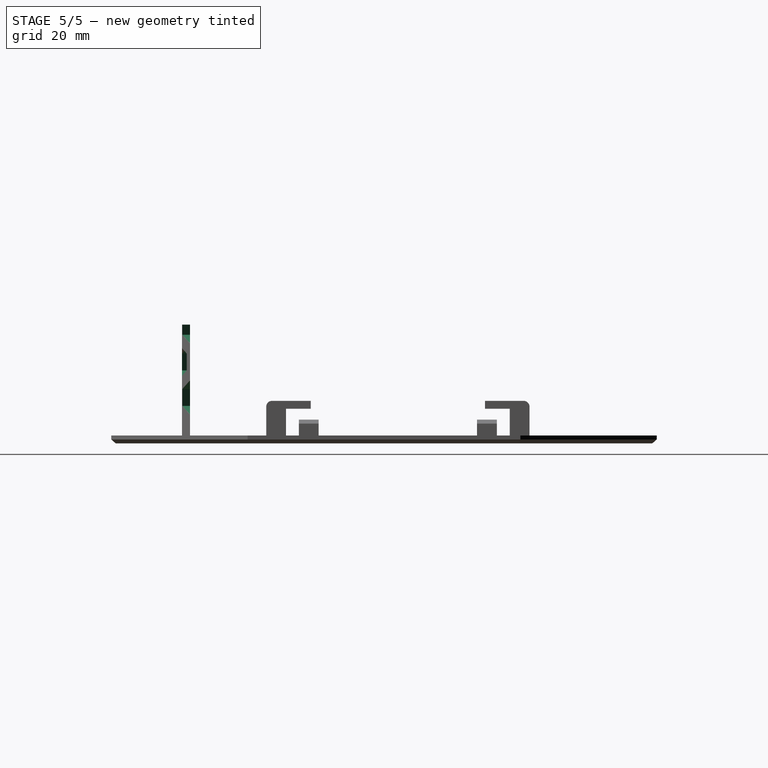
[diagram: stage 5 of 5 — right view after this stage's code; geometry added in this stage tinted green]
FEATURE [PartDesign::ShapeBinder] ShapeBinder  label="bottom_right_side_reference"
  Support = -> [PolarPattern001]
  TraceSupport = false
FEATURE [Sketcher::SketchObject] Sketch012  label="right_air_hole_sketch"
  ExternalGeometry = -> [ShapeBinder]
  FullyConstrained = false
  MapMode = 5
  Placement = pos=(29.8281,-51.6637,0) rot=(0.935113,0.250563,0.250563;1.63783rad)
  Support = -> [Fillet]
  sketch-geometry (24):
    g0: LineSegment StartX=5.14885 StartY=31.8208 StartZ=0 EndX=5.14885 EndY=33.8208 EndZ=0
    g1: LineSegment StartX=-7.68e-14 StartY=22.8088 StartZ=0 EndX=-7.68e-14 EndY=24.8088 EndZ=0
    g2: LineSegment StartX=5.16094 StartY=13.8456 StartZ=0 EndX=5.16094 EndY=15.8456 EndZ=0
    g3: LineSegment StartX=5.14885 StartY=33.8208 StartZ=0 EndX=1.46824 EndY=31.6958 EndZ=0
    g4: LineSegment StartX=1.46824 StartY=31.6958 StartZ=0 EndX=1.46824 EndY=27.4458 EndZ=0
    g5: LineSegment StartX=1.46824 StartY=27.4458 StartZ=0 EndX=5.14885 EndY=25.3208 EndZ=0
    g6: LineSegment StartX=5.14885 StartY=25.3208 StartZ=0 EndX=8.82946 EndY=27.4458 EndZ=0
    g7: LineSegment StartX=8.82946 StartY=27.4458 StartZ=0 EndX=8.82946 EndY=31.6958 EndZ=0
    g8: LineSegment StartX=8.82946 StartY=31.6958 StartZ=0 EndX=5.14885 EndY=33.8208 EndZ=0
    g9: Circle CenterX=5.14885 CenterY=29.5708 CenterZ=0 NormalX=0 NormalY=0 NormalZ=1 AngleXU=0 Radius=4.25
    g10: LineSegment StartX=-7.68e-14 StartY=24.8088 StartZ=0 EndX=-3.68061 EndY=22.6838 EndZ=0
    g11: LineSegment StartX=-3.68061 StartY=22.6838 StartZ=0 EndX=-3.68061 EndY=18.4338 EndZ=0
    g12: LineSegment StartX=-3.68061 StartY=18.4338 StartZ=0 EndX=-7.68e-14 EndY=16.3088 EndZ=0
    g13: LineSegment StartX=-7.68e-14 StartY=16.3088 StartZ=0 EndX=3.68061 EndY=18.4338 EndZ=0
    g14: LineSegment StartX=3.68061 StartY=18.4338 StartZ=0 EndX=3.68061 EndY=22.6838 EndZ=0
    g15: LineSegment StartX=3.68061 StartY=22.6838 StartZ=0 EndX=-7.68e-14 EndY=24.8088 EndZ=0
    g16: Circle CenterX=-7.7e-14 CenterY=20.5588 CenterZ=0 NormalX=0 NormalY=0 NormalZ=1 AngleXU=0 Radius=4.25
    g17: LineSegment StartX=5.16094 StartY=15.8456 StartZ=0 EndX=1.48034 EndY=13.7206 EndZ=0
    g18: LineSegment StartX=1.48034 StartY=13.7206 StartZ=0 EndX=1.48034 EndY=9.47056 EndZ=0
    g19: LineSegment StartX=1.48034 StartY=9.47056 StartZ=0 EndX=5.16094 EndY=7.34556 EndZ=0
    g20: LineSegment StartX=5.16094 StartY=7.34556 StartZ=0 EndX=8.84155 EndY=9.47056 EndZ=0
    g21: LineSegment StartX=8.84155 StartY=9.47056 StartZ=0 EndX=8.84155 EndY=13.7206 EndZ=0
    g22: LineSegment StartX=8.84155 StartY=13.7206 StartZ=0 EndX=5.16094 EndY=15.8456 EndZ=0
    g23: Circle CenterX=5.16094 CenterY=11.5956 CenterZ=0 NormalX=0 NormalY=0 NormalZ=1 AngleXU=0 Radius=4.25
  constraints (51):
    c: Vertical(g0)
    c: Distance(g0) = 2
    c: Vertical(g1)
    c: Equal(g1,g0)
    c: Vertical(g2)
    c: Equal(g2,g0)
    c: Coincident(g3,g4)
    c: Coincident(g4,g5)
    c: Coincident(g5,g6)
    c: Coincident(g6,g7)
    c: Coincident(g7,g8)
    c: Coincident(g8,g3)
    c: Equal(g3, g4-g8) x5
    c: PointOnObject(g3,g9)
    c: PointOnObject(g4,g9)
    c: PointOnObject(g5,g9)
    c: PointOnObject(g6,g9)
    c: PointOnObject(g7,g9)
    c: PointOnObject(g8,g9)
    c: Coincident(g8,g0)
    c: PointOnObject(g5,g0)
    c: Coincident(g10,g11)
    c: Coincident(g11,g12)
    c: Coincident(g12,g13)
    c: Coincident(g13,g14)
    c: Coincident(g14,g15)
    c: Coincident(g15,g10)
    c: Equal(g10, g11-g15) x5
    c: PointOnObject(g10,g16)
    c: PointOnObject(g11,g16)
    c: PointOnObject(g12,g16)
    c: PointOnObject(g13,g16)
    c: PointOnObject(g14,g16)
    c: PointOnObject(g15,g16)
    c: Coincident(g15,g1)
    c: PointOnObject(g12,g1)
    c: Coincident(g17,g18)
    c: Coincident(g18,g19)
    c: Coincident(g19,g20)
    c: Coincident(g20,g21)
    c: Coincident(g21,g22)
    c: Coincident(g22,g17)
    c: Equal(g17, g18-g22) x5
    c: PointOnObject(g17,g23)
    c: PointOnObject(g18,g23)
    c: PointOnObject(g19,g23)
    c: PointOnObject(g20,g23)
    c: PointOnObject(g21,g23)
    c: PointOnObject(g22,g23)
    c: Coincident(g22,g2)
    c: PointOnObject(g23,g2)
FEATURE [PartDesign::Pocket] Pocket002  label="right_air_holes_in_divider"
  BaseFeature = -> Fillet
  Direction = (1,1,1)
  Length = 5
  Length2 = 5
  Profile = -> Sketch012
  Type = 0
FEATURE [PartDesign::ShapeBinder] ShapeBinder001  label="bottom_left_side_reference"
  Placement = pos=(57.65,0,0) rot=(0.57735,0.57735,0.57735;2.0944rad)
  Support = -> [PolarPattern001]
  TraceSupport = false
FEATURE [Sketcher::SketchObject] Sketch013  label="left_air_hole_sketch"
  ExternalGeometry = -> [ShapeBinder001]
  FullyConstrained = false
  MapMode = 5
  Placement = pos=(-29.8281,-51.6637,0) rot=(0.935113,-0.250563,-0.250563;1.63783rad)
  Support = -> [Pocket002]
  sketch-geometry (24):
    g0: LineSegment StartX=-5.16115 StartY=31.8139 StartZ=0 EndX=-5.16115 EndY=33.8139 EndZ=0
    g1: LineSegment StartX=7.69e-14 StartY=22.8088 StartZ=0 EndX=0 EndY=24.8088 EndZ=0
    g2: LineSegment StartX=-5.14905 StartY=13.8386 StartZ=0 EndX=-5.14905 EndY=15.8386 EndZ=0
    g3: LineSegment StartX=-5.16115 StartY=33.8139 StartZ=0 EndX=-8.84176 EndY=31.6889 EndZ=0
    g4: LineSegment StartX=-8.84176 StartY=31.6889 StartZ=0 EndX=-8.84176 EndY=27.4389 EndZ=0
    g5: LineSegment StartX=-8.84176 StartY=27.4389 StartZ=0 EndX=-5.16115 EndY=25.3139 EndZ=0
    g6: LineSegment StartX=-5.16115 StartY=25.3139 StartZ=0 EndX=-1.48054 EndY=27.4389 EndZ=0
    g7: LineSegment StartX=-1.48054 StartY=27.4389 StartZ=0 EndX=-1.48054 EndY=31.6889 EndZ=0
    g8: LineSegment StartX=-1.48054 StartY=31.6889 StartZ=0 EndX=-5.16115 EndY=33.8139 EndZ=0
    g9: Circle CenterX=-5.16115 CenterY=29.5639 CenterZ=0 NormalX=0 NormalY=0 NormalZ=1 AngleXU=0 Radius=4.25
    g10: LineSegment StartX=0 StartY=24.8088 StartZ=0 EndX=-3.68061 EndY=22.6838 EndZ=0
    g11: LineSegment StartX=-3.68061 StartY=22.6838 StartZ=0 EndX=-3.68061 EndY=18.4338 EndZ=0
    g12: LineSegment StartX=-3.68061 StartY=18.4338 StartZ=0 EndX=3.26e-13 EndY=16.3088 EndZ=0
    g13: LineSegment StartX=3.26e-13 StartY=16.3088 StartZ=0 EndX=3.68061 EndY=18.4338 EndZ=0
    g14: LineSegment StartX=3.68061 StartY=18.4338 StartZ=0 EndX=3.68061 EndY=22.6838 EndZ=0
    g15: LineSegment StartX=3.68061 StartY=22.6838 StartZ=0 EndX=0 EndY=24.8088 EndZ=0
    g16: Circle CenterX=1.634e-13 CenterY=20.5588 CenterZ=0 NormalX=0 NormalY=0 NormalZ=1 AngleXU=0 Radius=4.25
    g17: LineSegment StartX=-5.14905 StartY=15.8386 StartZ=0 EndX=-8.82966 EndY=13.7136 EndZ=0
    g18: LineSegment StartX=-8.82966 StartY=13.7136 StartZ=0 EndX=-8.82966 EndY=9.46362 EndZ=0
    g19: LineSegment StartX=-8.82966 StartY=9.46362 StartZ=0 EndX=-5.14905 EndY=7.33862 EndZ=0
    g20: LineSegment StartX=-5.14905 StartY=7.33862 StartZ=0 EndX=-1.46845 EndY=9.46362 EndZ=0
    g21: LineSegment StartX=-1.46845 StartY=9.46362 StartZ=0 EndX=-1.46845 EndY=13.7136 EndZ=0
    g22: LineSegment StartX=-1.46845 StartY=13.7136 StartZ=0 EndX=-5.14905 EndY=15.8386 EndZ=0
    g23: Circle CenterX=-5.14905 CenterY=11.5886 CenterZ=0 NormalX=0 NormalY=0 NormalZ=1 AngleXU=0 Radius=4.25
  constraints (51):
    c: Vertical(g0)
    c: PointOnObject(g1,g-2)
    c: Vertical(g2)
    c: Distance(g0) = 2
    c: Equal(g1,g0)
    c: Equal(g2,g0)
    c: Coincident(g3,g4)
    c: Coincident(g4,g5)
    c: Coincident(g5,g6)
    c: Coincident(g6,g7)
    c: Coincident(g7,g8)
    c: Coincident(g8,g3)
    c: Equal(g3, g4-g8) x5
    c: PointOnObject(g3,g9)
    c: PointOnObject(g4,g9)
    c: PointOnObject(g5,g9)
    c: PointOnObject(g6,g9)
    c: PointOnObject(g7,g9)
    c: PointOnObject(g8,g9)
    c: Coincident(g8,g0)
    c: Coincident(g10,g11)
    c: Coincident(g11,g12)
    c: Coincident(g12,g13)
    c: Coincident(g13,g14)
    c: Coincident(g14,g15)
    c: Coincident(g15,g10)
    c: Equal(g10, g11-g15) x5
    c: PointOnObject(g10,g16)
    c: PointOnObject(g11,g16)
    c: PointOnObject(g12,g16)
    c: PointOnObject(g13,g16)
    c: PointOnObject(g14,g16)
    c: PointOnObject(g15,g16)
    c: Coincident(g15,g1)
    c: Coincident(g17,g18)
    c: Coincident(g18,g19)
    c: Coincident(g19,g20)
    c: Coincident(g20,g21)
    c: Coincident(g21,g22)
    c: Coincident(g22,g17)
    c: Equal(g17, g18-g22) x5
    c: PointOnObject(g17,g23)
    c: PointOnObject(g18,g23)
    c: PointOnObject(g19,g23)
    c: PointOnObject(g20,g23)
    c: PointOnObject(g21,g23)
    c: PointOnObject(g22,g23)
    c: Coincident(g22,g2)
    c: PointOnObject(g9,g0)
    c: PointOnObject(g16,g1)
    c: PointOnObject(g23,g2)
FEATURE [PartDesign::Pocket] Pocket003  label="left_air_holes_in_divider"
  BaseFeature = -> Pocket002
  Direction = (1,1,1)
  Length = 5
  Length2 = 5
  Profile = -> Sketch013
  Type = 0
FEATURE [Part::Part2DObjectPython] ShapeString  # Draft 2D object (typed FeaturePython)
  FontFile = <path>
  MakeFace = true
  Placement = pos=(-20,-32,2) rot=(0,0,1;0rad)
  Size = 5
  String = EU Cover v2.1
  Tracking = 0
FEATURE [PartDesign::Pocket] Pocket004
  BaseFeature = -> Pocket003
  Direction = (0,0,-1)
  Length = 1
  Length2 = 5
  Profile = -> ShapeString
  ReferenceAxis = -> ShapeString [N_Axis]
  Type = 0
FEATURE [PartDesign::Body] Body  label="Front plate"
  Group = -> [Sketch,Pad,Chamfer,Sketch003,Sketch006,Pad003,Pad004,Sketch007,Pad005,Sketch008,Pad006,Sketch009,Pocket,Sketch011,Pocket001,Chamfer001,Fillet,ShapeBinder,Sketch012,Pocket002,ShapeBinder001,Sketch013,Pocket003,ShapeString,Pocket004]
  Origin = -> Origin
  Tip = -> Pocket004
note: 1 file-system path scrubbed to <path> (originals preserved in the JSON sidecar)
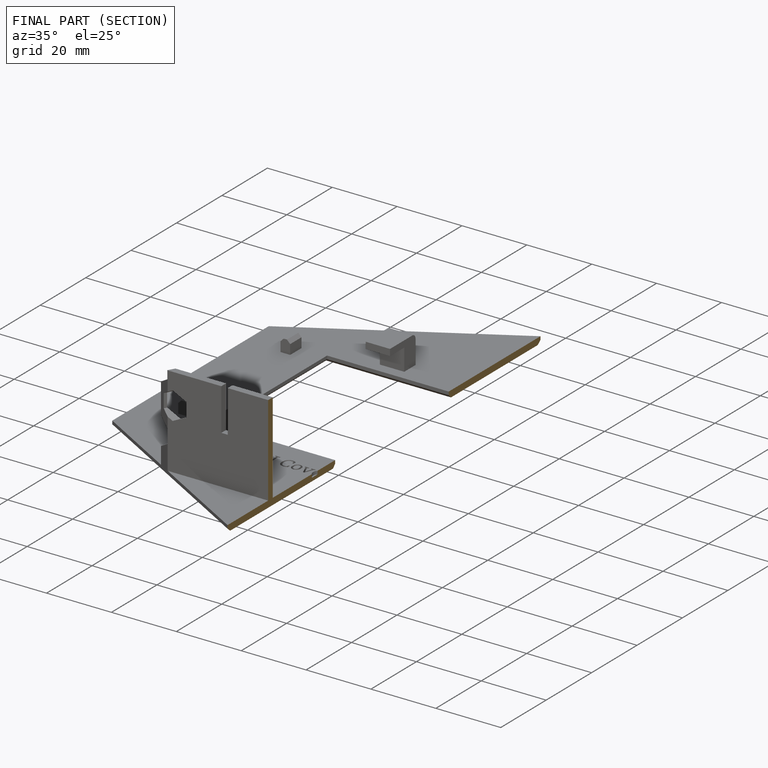
[diagram: finished part — half-section view (interior)]
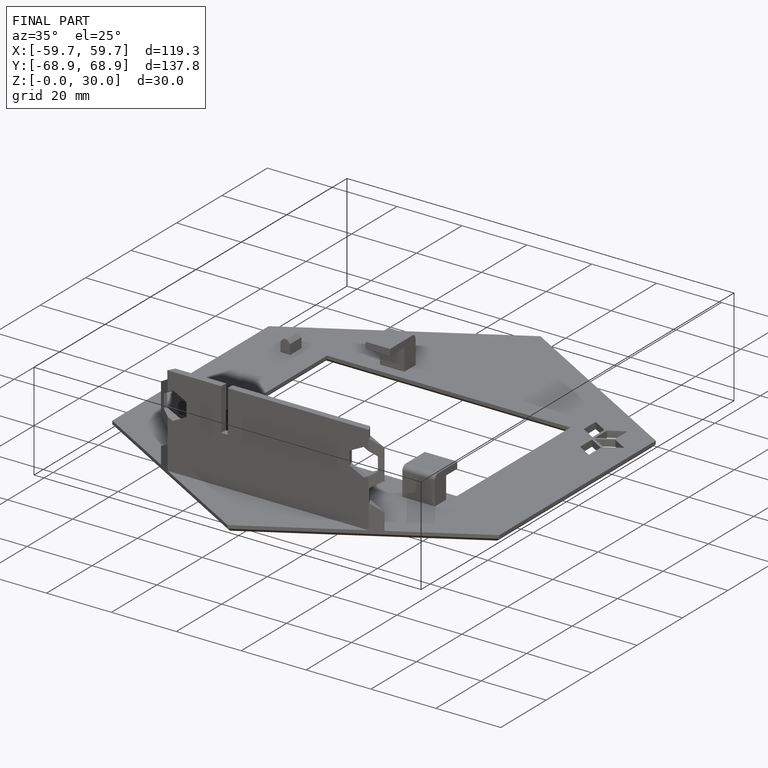
[diagram: finished part — iso view with bounding-box wireframe]
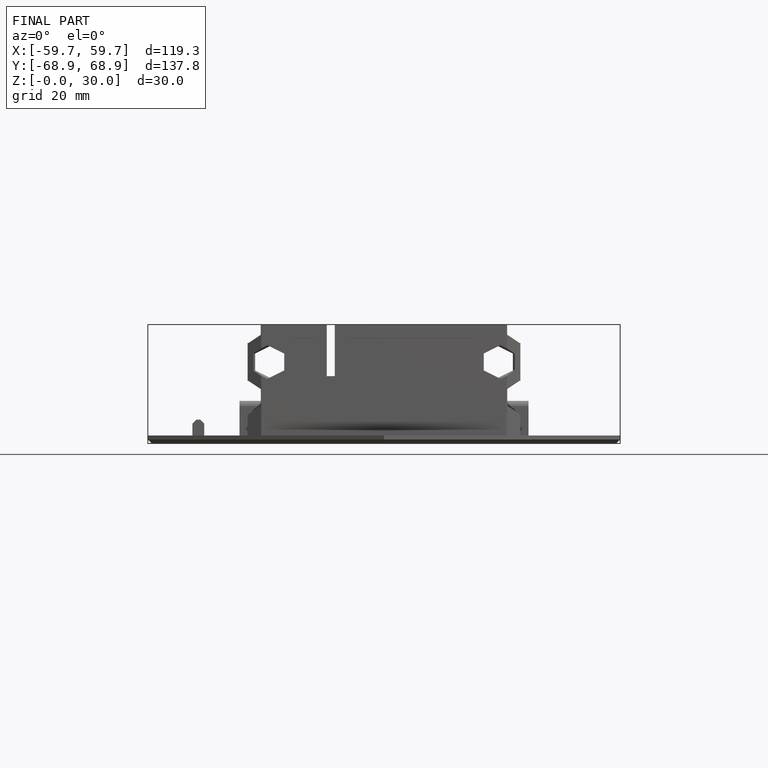
[diagram: finished part — front view with bounding-box wireframe]
